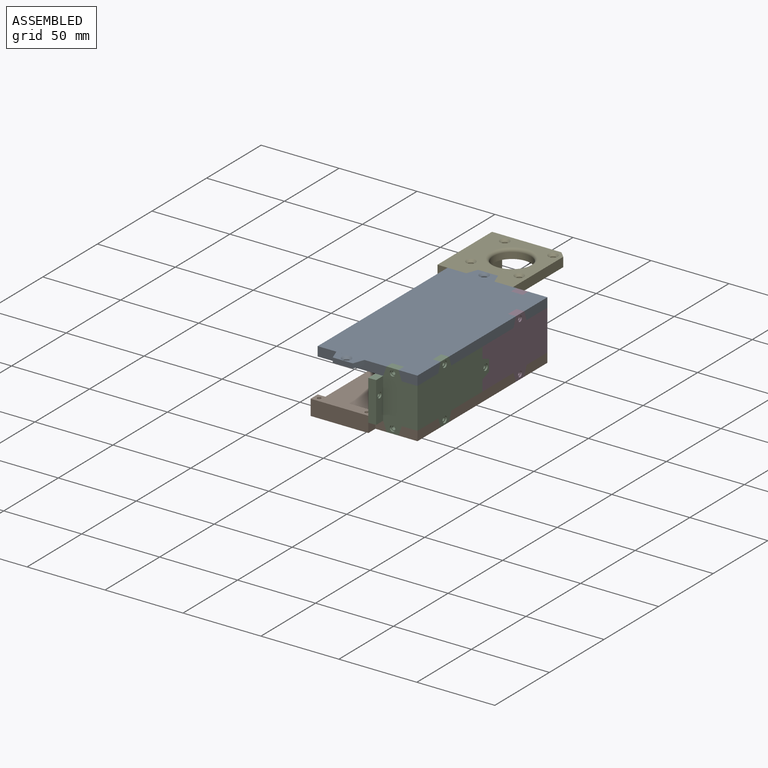
[diagram: assembled view]
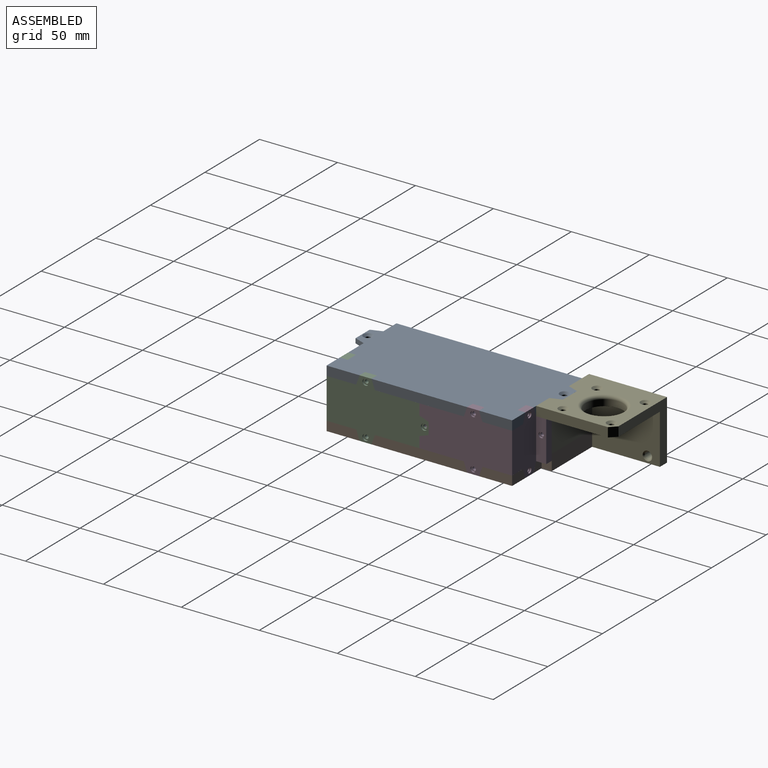
[diagram: assembled view, second angle]
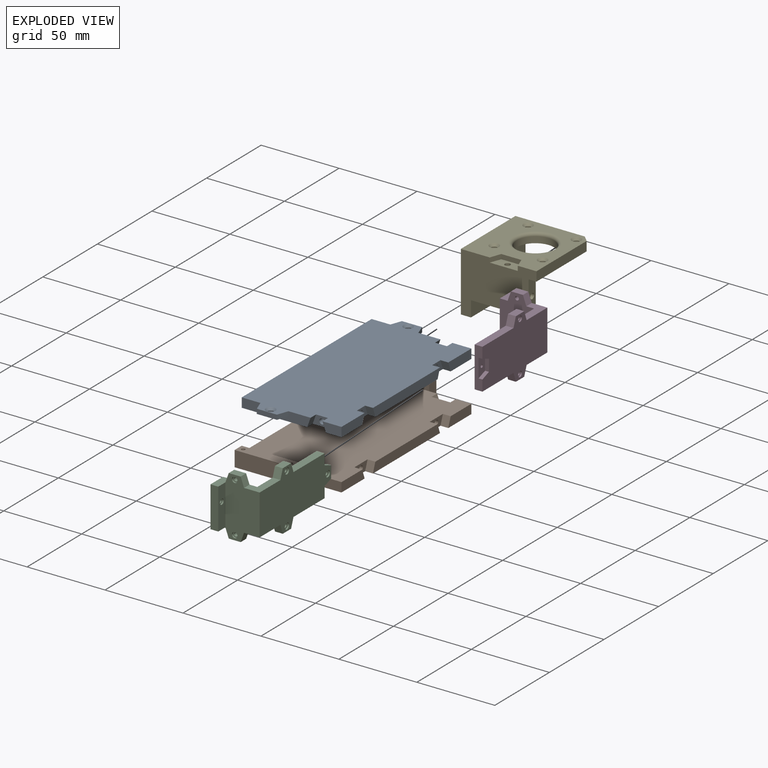
[diagram: exploded view]
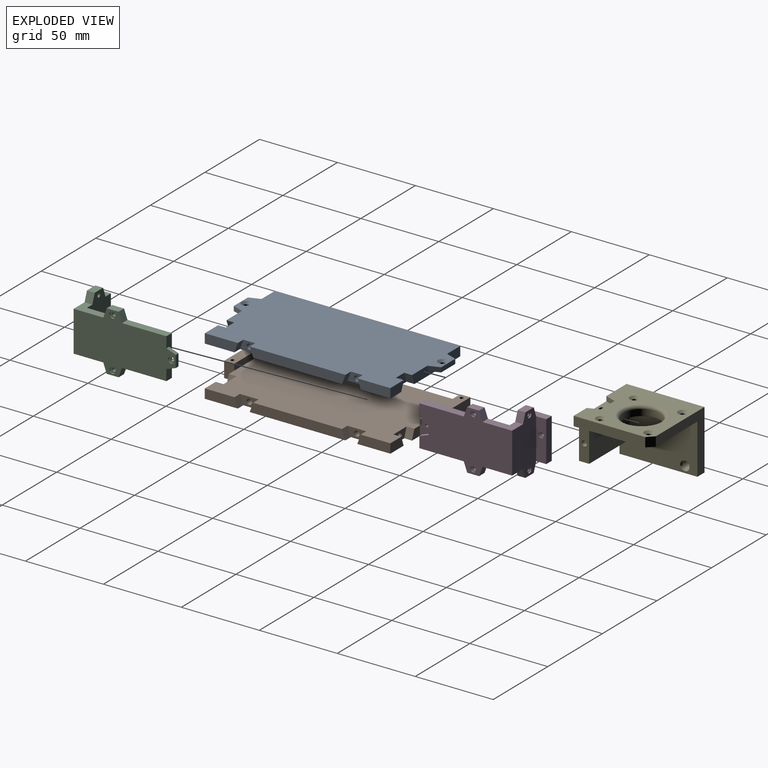
[diagram: exploded view, second angle]
FCSTD DOCUMENT  (FreeCAD 0.22R38334 (Git))
Label: E11A001
License: All rights reserved
LicenseURL: http://en.wikipedia.org/wiki/All_rights_reserved
objects: App::FeaturePython×8, App::Link×5, Assembly::JointGroup×1, Assembly::AssemblyObject×1
EXTERNAL_REF file=CH001.FCStd obj=Part004
EXTERNAL_REF file=MH004-1.FCStd obj=Part003
EXTERNAL_REF file=CH001.FCStd obj=Part__Mirroring
EXTERNAL_REF file=MH004-1.FCStd obj=Fusion
EXTERNAL_REF file=CH002.FCStd obj=Part004
EXTERNAL_REF file=CH002.FCStd obj=Fusion
EXTERNAL_REF file=CH003.FCStd obj=Part004
EXTERNAL_REF file=CH003.FCStd obj=Body
EXTERNAL_REF file=CH001.FCStd obj=Body017
EXTERNAL_REF file=CH004.FCStd obj=Part004
EXTERNAL_REF file=CH004.FCStd obj=Body

FEATURE [App::Link] CH001_
  LinkedObject = -> <external CH001.FCStd>#Part004
FEATURE [App::FeaturePython] GroundedJoint  # Assembly grounded joint (typed FeaturePython)
  ObjectToGround = -> CH001_
FEATURE [App::Link] MH004_1_  label="MH004-1_"
  LinkPlacement = pos=(-11,84.5012,-2e-16) rot=(0,0,1;0rad)
  LinkedObject = -> <external MH004-1.FCStd>#Part003
  Placement = pos=(-11,84.5012,-2e-16) rot=(0,0,1;0rad)
FEATURE [App::FeaturePython] Fixed  # Assembly joint (typed FeaturePython)
  Activated = true
  AngleMax = 0
  AngleMin = 0
  Detach1 = false
  Detach2 = false
  Distance = 0
  Distance2 = 0
  EnableAngleMax = false
  EnableAngleMin = false
  EnableLengthMax = false
  EnableLengthMin = false
  JointType = 0 (Fixed)
  LengthMax = 0
  LengthMin = 0
  Object1 = -> <external CH001.FCStd>#Part__Mirroring [Face4,Face4]
  Object2 = -> <external MH004-1.FCStd>#Fusion [Face20,Face20]
  Offset = (0,0,0)
  Part1 = -> CH001_
  Part2 = -> MH004_1_
  Placement1 = pos=(-11,62.79,3) rot=(1,0,0;3.14159rad)
  Placement2 = pos=(2e-16,-21.7111,3) rot=(0,0,1;0rad)
  Rotation = 0
FEATURE [App::Link] CH002_
  LinkPlacement = pos=(-1.2e-15,0.00115479,-26) rot=(1,0,0;3.14159rad)
  LinkedObject = -> <external CH002.FCStd>#Part004
  Placement = pos=(-1.2e-15,0.00115479,-26) rot=(1,0,0;3.14159rad)
FEATURE [App::FeaturePython] Fixed001  # Assembly joint (typed FeaturePython)
  Activated = true
  AngleMax = 0
  AngleMin = 0
  Detach1 = false
  Detach2 = false
  Distance = 0
  Distance2 = 0
  EnableAngleMax = false
  EnableAngleMin = false
  EnableLengthMax = false
  EnableLengthMin = false
  JointType = 0 (Fixed)
  LengthMax = 0
  LengthMin = 0
  Object1 = -> <external CH002.FCStd>#Fusion [Face27,Face27]
  Object2 = -> <external MH004-1.FCStd>#Fusion [Face32,Face32]
  Offset = (0,0,0)
  Part1 = -> CH002_
  Part2 = -> MH004_1_
  Placement1 = pos=(-13.5,-62.75,-4) rot=(0,0,1;0rad)
  Placement2 = pos=(-2.5,-21.75,-22) rot=(0,0,1;0rad)
  Rotation = 0
FEATURE [App::Link] CH003_
  LinkPlacement = pos=(27,7.1e-15,-13) rot=(0,0,1;0rad)
  LinkedObject = -> <external CH003.FCStd>#Part004
  Placement = pos=(27,7.1e-15,-13) rot=(0,0,1;0rad)
FEATURE [App::FeaturePython] Fixed002 .. Fixed005  x4 (patterned run collapsed; names and placements below)
  Activated = true
  AngleMax = 0
  AngleMin = 0
  Detach1 = false
  Detach2 = false
  Distance = 0
  Distance2 = 0
  EnableAngleMax = false
  EnableAngleMin = false
  EnableLengthMax = false
  EnableLengthMin = false
  JointType = 0 (Fixed)
  LengthMax = 0
  LengthMin = 0
  Object1 = -> <external CH003.FCStd>#Body [Edge11,Edge11]
  Object2 = -> <external CH001.FCStd>#Body017 [Edge32,Edge32]
  Offset = (0,0,0)
  Part1 = -> CH003_
  Part2 = -> CH001_
  Placement1 = pos=(-1.9e-14,-34.5,19) rot=(0.57735,0.57735,0.57735;4.18879rad)
  Placement2 = pos=(27,82.5,6) rot=(0.57735,0.57735,0.57735;4.18879rad)
  Rotation = 0
FEATURE [App::Link] CH004_
  LinkPlacement = pos=(27,-0.00597446,-13) rot=(1,0,0;3.14159rad)
  LinkedObject = -> <external CH004.FCStd>#Part004
  Placement = pos=(27,-0.00597446,-13) rot=(1,0,0;3.14159rad)
FEATURE [App::FeaturePython] Fixed006  # Assembly joint (typed FeaturePython)
  Activated = true
  AngleMax = 0
  AngleMin = 0
  Detach1 = false
  Detach2 = false
  Distance = 0
  Distance2 = 0
  EnableAngleMax = false
  EnableAngleMin = false
  EnableLengthMax = false
  EnableLengthMin = false
  JointType = 0 (Fixed)
  LengthMax = 0
  LengthMin = 0
  Object1 = -> <external CH004.FCStd>#Body [Face23,Face23]
  Object2 = -> <external CH003.FCStd>#Body [Face25,Face25]
  Offset = (0,0,0)
  Part1 = -> CH004_
  Part2 = -> CH003_
  Placement1 = pos=(2.5,-2.76499,1e-15) rot=(0.707107,0,0.707107;3.14159rad)
  Placement2 = pos=(2.5,2.75902,-4.4e-15) rot=(0,-1,0;4.71239rad)
  Rotation = 180
FEATURE [Assembly::JointGroup] Joints
  Group = -> [GroundedJoint,Fixed,Fixed001,Fixed002,Fixed003,Fixed004,Fixed005,Fixed006]
FEATURE [Assembly::AssemblyObject] Assembly
  Group = -> [Joints,CH001_,GroundedJoint,MH004_1_,Fixed,CH002_,Fixed001,CH003_,Fixed002,Fixed003,Fixed004,Fixed005,CH004_,Fixed006]
  Origin = -> Origin
  Type = Assembly

RESOLVED EXTERNAL PARTS (link-assembly join: the EXTERNAL_REF files above that resolve inside this repo's crawl, each included once):
---- part CH001.FCStd = doc fcstd_3d4a5a9f80d4 ----
FCSTD DOCUMENT  (FreeCAD 0.22R38334 (Git))
Label: CH001
License: All rights reserved
LicenseURL: http://en.wikipedia.org/wiki/All_rights_reserved
objects: Sketcher::SketchObject×9, PartDesign::Pocket×6, PartDesign::Body×4, PartDesign::SubShapeBinder×2, PartDesign::Pad×2, PartDesign::Hole×1, Part::Mirroring×1, PartDesign::FeatureBase×1, App::Part×1
note: 54 computed .brp shape members not serialized (recipe doc carries the construction recipe); baked Part::Feature solids carry a one-line shape summary decoded from their .brp

FEATURE [PartDesign::SubShapeBinder] Binder020
  BindCopyOnChange = 0
  BindMode = 0
  ClaimChildren = false
  Context = -> Part004 [Body017.Binder020.]
  Fuse = false
  MakeFace = true
  OffsetFill = false
  OffsetIntersection = false
  OffsetJoinType = 0
  OffsetOpenResult = false
  PartialLoad = false
  Relative = true
  Support = -> [Body016[Sketch033.]]
  _Version = 2
FEATURE [PartDesign::Pad] Pad012
  Direction = (0,0,1)
  Length = 6
  Length2 = 10
  Profile = -> Binder020
  Suppressed = false
  Type = 0
FEATURE [Sketcher::SketchObject] Sketch
  AttachmentSupport = -> [Pad012]
  ExternalGeometry = -> [Pad012]
  FullyConstrained = true
  MakeInternals = false
  MapMode = 5
  Placement = pos=(32,0,0) rot=(0.57735,0.57735,0.57735;2.0944rad)
  sketch-geometry (4):
    g0: LineSegment StartX=57.5 StartY=3 StartZ=0 EndX=176.5 EndY=3 EndZ=0
    g1: Circle CenterX=82.5 CenterY=3 CenterZ=0 NormalX=0 NormalY=0 NormalZ=1 AngleXU=0 Radius=1.75
    g2: Circle CenterX=151.5 CenterY=3 CenterZ=0 NormalX=0 NormalY=0 NormalZ=1 AngleXU=0 Radius=1.75
    g3: GeomPoint X=117 Y=3 Z=0
  constraints (8):
    c: Symmetric(g-5,g-5,g0)
    c: Symmetric(g-6,g-6,g0)
    c: PointOnObject(g1,g0)
    c: Diameter(g1) = 3.5
    c: Equal(g1,g2)
    c: Symmetric(g0,g0,g3)
    c: Symmetric(g1,g2,g3)
    c: DistanceX(g0,g1) = 25
FEATURE [PartDesign::Pocket] Pocket
  BaseFeature = -> Pad012
  Direction = (-1,0,0)
  Length = 9
  Length2 = 5
  Profile = -> Sketch
  ReferenceAxis = -> Sketch [N_Axis]
  Suppressed = false
  Type = 0
FEATURE [Sketcher::SketchObject] Sketch033
  AttachmentSupport = -> [XY_Plane021]
  FullyConstrained = true
  MakeInternals = false
  MapMode = 5
  expr: Constraints[10] = 215 - 48 * 2
  sketch-geometry (5):
    g0: LineSegment StartX=-32 StartY=-59.5 StartZ=0 EndX=32 EndY=-59.5 EndZ=0
    g1: LineSegment StartX=32 StartY=-59.5 StartZ=0 EndX=32 EndY=59.5 EndZ=0
    g2: LineSegment StartX=32 StartY=59.5 StartZ=0 EndX=-32 EndY=59.5 EndZ=0
    g3: LineSegment StartX=-32 StartY=59.5 StartZ=0 EndX=-32 EndY=-59.5 EndZ=0
    g4: GeomPoint X=0 Y=0 Z=0
  constraints (12):
    c: Coincident(g0,g1)
    c: Coincident(g1,g2)
    c: Coincident(g2,g3)
    c: Coincident(g3,g0)
    c: Horizontal(g0)
    c: Horizontal(g2)
    c: Vertical(g1)
    c: Vertical(g3)
    c: Symmetric(g2,g0,g4)
    c: Coincident(g4,g-1)
    c: DistanceY(g1,g1) = 119
    c: DistanceX(g2,g2) = 64
FEATURE [PartDesign::Body] Body016  label="Master004"
  AllowCompound = false
  Group = -> [Sketch033]
  Origin = -> Origin021
FEATURE [Sketcher::SketchObject] Sketch044
  AttachmentSupport = -> [Pocket]
  ExternalGeometry = -> [Pocket]
  FullyConstrained = true
  MakeInternals = false
  MapMode = 5
  Placement = pos=(32,0,0) rot=(0.57735,0.57735,0.57735;2.0944rad)
  sketch-geometry (10):
    g0: LineSegment StartX=76.5 StartY=0 StartZ=0 EndX=78.6838 EndY=6 EndZ=0
    g1: LineSegment StartX=78.6838 StartY=6 StartZ=0 EndX=86.3162 EndY=6 EndZ=0
    g2: LineSegment StartX=86.3162 StartY=6 StartZ=0 EndX=88.5 EndY=0 EndZ=0
    g3: LineSegment StartX=88.5 StartY=0 StartZ=0 EndX=76.5 EndY=0 EndZ=0
    g4: LineSegment StartX=147.684 StartY=6 StartZ=0 EndX=155.316 EndY=6 EndZ=0
    g5: LineSegment StartX=155.316 StartY=6 StartZ=0 EndX=157.5 EndY=0 EndZ=0
    g6: LineSegment StartX=157.5 StartY=0 StartZ=0 EndX=145.5 EndY=0 EndZ=0
    g7: LineSegment StartX=145.5 StartY=0 StartZ=0 EndX=147.684 EndY=6 EndZ=0
    g8: LineSegment StartX=82.5 StartY=6 StartZ=0 EndX=82.5 EndY=0 EndZ=0
    g9: LineSegment StartX=151.5 StartY=6 StartZ=0 EndX=151.5 EndY=2.336e-13 EndZ=0
  constraints (28):
    c: PointOnObject(g0,g-6)
    c: PointOnObject(g0,g-5)
    c: Coincident(g0,g1)
    c: PointOnObject(g1,g-5)
    c: Coincident(g1,g2)
    c: PointOnObject(g2,g-6)
    c: Coincident(g2,g3)
    c: Coincident(g3,g0)
    c: PointOnObject(g4,g-5)
    c: PointOnObject(g4,g-5)
    c: Coincident(g4,g5)
    c: PointOnObject(g5,g-6)
    c: Coincident(g5,g6)
    c: PointOnObject(g6,g-6)
    c: Coincident(g6,g7)
    c: Coincident(g7,g4)
    c: Symmetric(g1,g1,g8)
    c: Symmetric(g3,g3,g8)
    c: Symmetric(g4,g4,g9)
    c: PointOnObject(g-3,g8)
    c: Angle(g0,g1) = 1.91986
    c: Vertical(g8)
    c: DistanceX(g6,g6) = 12
    c: Angle(g7,g4) = 1.91986
    c: Symmetric(g6,g6,g9)
    c: Vertical(g9)
    c: PointOnObject(g-4,g9)
    c: DistanceX(g3,g3) = 12
FEATURE [PartDesign::Pocket] Pocket001
  BaseFeature = -> Pocket
  Direction = (-1,0,0)
  Length = 5
  Length2 = 5
  Profile = -> Sketch044
  ReferenceAxis = -> Sketch044 [N_Axis]
  Suppressed = false
  Type = 0
FEATURE [Sketcher::SketchObject] Sketch045
  AttachmentSupport = -> [Pocket001]
  ExternalGeometry = -> [Pocket001]
  FullyConstrained = true
  MakeInternals = false
  MapMode = 5
  Placement = pos=(0,57.5,0) rot=(1,0,0;1.5708rad)
  sketch-geometry (5):
    g0: LineSegment StartX=10 StartY=0 StartZ=0 EndX=12.1838 EndY=6 EndZ=0
    g1: LineSegment StartX=12.1838 StartY=6 StartZ=0 EndX=19.8162 EndY=6 EndZ=0
    g2: LineSegment StartX=19.8162 StartY=6 StartZ=0 EndX=22 EndY=0 EndZ=0
    g3: LineSegment StartX=22 StartY=0 StartZ=0 EndX=10 EndY=0 EndZ=0
    g4: LineSegment StartX=16 StartY=6 StartZ=0 EndX=16 EndY=0 EndZ=0
  constraints (14):
    c: PointOnObject(g0,g-3)
    c: PointOnObject(g0,g-4)
    c: Coincident(g0,g1)
    c: PointOnObject(g1,g-4)
    c: Coincident(g1,g2)
    c: PointOnObject(g2,g-3)
    c: Coincident(g2,g3)
    c: Coincident(g3,g0)
    c: Vertical(g4)
    c: Symmetric(g1,g1,g4)
    c: Symmetric(g3,g3,g4)
    c: Angle(g0,g1) = 1.91986
    c: DistanceX(g3,g3) = 12
    c: DistanceX(g2,g-5) = 10
FEATURE [PartDesign::Pocket] Pocket002
  BaseFeature = -> Pocket001
  Direction = (0,1,-2e-16)
  Length = 5
  Length2 = 5
  Profile = -> Sketch045
  ReferenceAxis = -> Sketch045 [N_Axis]
  Suppressed = false
  Type = 0
FEATURE [Sketcher::SketchObject] Sketch046
  AttachmentSupport = -> [Pocket002]
  ExternalGeometry = -> [Pocket002]
  FullyConstrained = true
  MakeInternals = false
  MapMode = 5
  Placement = pos=(0,62.5,0) rot=(1,0,0;1.5708rad)
  sketch-geometry (2):
    g0: LineSegment StartX=16 StartY=6 StartZ=0 EndX=16 EndY=0 EndZ=0
    g1: Circle CenterX=16 CenterY=3 CenterZ=0 NormalX=0 NormalY=0 NormalZ=1 AngleXU=0 Radius=1.75
  constraints (4):
    c: Symmetric(g-3,g-3,g0)
    c: Symmetric(g-4,g-4,g0)
    c: Symmetric(g0,g0,g1)
    c: Diameter(g1) = 3.5
FEATURE [PartDesign::Pocket] Pocket003
  BaseFeature = -> Pocket002
  Direction = (0,1,-2e-16)
  Length = 4
  Length2 = 5
  Profile = -> Sketch046
  ReferenceAxis = -> Sketch046 [N_Axis]
  Suppressed = false
  Type = 0
FEATURE [Sketcher::SketchObject] Sketch047
  AttachmentSupport = -> [Pocket003]
  ExternalGeometry = -> [Pocket003]
  FullyConstrained = true
  MakeInternals = false
  MapMode = 5
  Placement = pos=(0,176.5,0) rot=(0,0.707107,0.707107;3.14159rad)
  sketch-geometry (5):
    g0: LineSegment StartX=-22 StartY=-1.9e-15 StartZ=0 EndX=-19.8162 EndY=6 EndZ=0
    g1: LineSegment StartX=-19.8162 StartY=6 StartZ=0 EndX=-12.1838 EndY=6 EndZ=0
    g2: LineSegment StartX=-12.1838 StartY=6 StartZ=0 EndX=-10 EndY=-9e-16 EndZ=0
    g3: LineSegment StartX=-10 StartY=-9e-16 StartZ=0 EndX=-22 EndY=-1.9e-15 EndZ=0
    g4: LineSegment StartX=-16 StartY=6 StartZ=0 EndX=-16 EndY=-1.8e-15 EndZ=0
  constraints (14):
    c: PointOnObject(g0,g-4)
    c: PointOnObject(g0,g-3)
    c: Coincident(g0,g1)
    c: PointOnObject(g1,g-3)
    c: Coincident(g1,g2)
    c: PointOnObject(g2,g-4)
    c: Coincident(g2,g3)
    c: Coincident(g3,g0)
    c: Vertical(g4)
    c: Symmetric(g1,g1,g4)
    c: Symmetric(g3,g3,g4)
    c: DistanceX(g3,g3) = 12
    c: Angle(g0,g1) = 1.91986
    c: DistanceX(g-4,g0) = 10
FEATURE [PartDesign::Pocket] Pocket004
  BaseFeature = -> Pocket003
  Direction = (0,-1,2e-16)
  Length = 5
  Length2 = 5
  Profile = -> Sketch047
  ReferenceAxis = -> Sketch047 [N_Axis]
  Suppressed = false
  Type = 0
FEATURE [PartDesign::SubShapeBinder] Binder
  BindCopyOnChange = 0
  BindMode = 0
  ClaimChildren = false
  Context = -> Part004 [Body.Binder.]
  Fuse = false
  MakeFace = true
  OffsetFill = false
  OffsetIntersection = false
  OffsetJoinType = 0
  OffsetOpenResult = false
  PartialLoad = false
  Placement = pos=(0,0,3) rot=(0,0,1;0rad)
  Relative = true
  Support = -> [Body016[Sketch033.]]
  _Version = 2
FEATURE [PartDesign::Body] Body  label="CH002"
  AllowCompound = false
  Origin = -> Origin
FEATURE [Sketcher::SketchObject] Sketch050
  AttachmentSupport = -> [Binder]
  ExternalGeometry = -> [Binder]
  FullyConstrained = true
  MakeInternals = false
  MapMode = 5
  Placement = pos=(0,0,3) rot=(0,0,1;0rad)
  sketch-geometry (5):
    g0: LineSegment StartX=-20 StartY=-59.5 StartZ=0 EndX=-17.4522 EndY=-66.5 EndZ=0
    g1: LineSegment StartX=-17.4522 StartY=-66.5 StartZ=0 EndX=-4.54779 EndY=-66.5 EndZ=0
    g2: LineSegment StartX=-4.54779 StartY=-66.5 StartZ=0 EndX=-2 EndY=-59.5 EndZ=0
    g3: LineSegment StartX=-2 StartY=-59.5 StartZ=0 EndX=-20 EndY=-59.5 EndZ=0
    g4: LineSegment StartX=-11 StartY=-59.5 StartZ=0 EndX=-11 EndY=-66.5 EndZ=0
  constraints (14):
    c: PointOnObject(g0,g-3)
    c: Coincident(g0,g1)
    c: Horizontal(g1)
    c: Coincident(g1,g2)
    c: PointOnObject(g2,g-3)
    c: Coincident(g2,g3)
    c: Coincident(g3,g0)
    c: Symmetric(g3,g3,g4)
    c: Vertical(g4)
    c: Symmetric(g1,g1,g4)
    c: DistanceX(g3,g3) = 18
    c: Angle(g1,g0) = 1.91986
    c: DistanceY(g1,g2) = 7
    c: DistanceX(g-3,g4) = 21
FEATURE [PartDesign::Pad] Pad
  Direction = (0,0,1)
  Length = 3
  Length2 = 10
  Placement = pos=(0,0,3) rot=(0,0,1;0rad)
  Profile = -> Sketch050
  ReferenceAxis = -> Sketch050 [N_Axis]
  Suppressed = false
  Type = 0
FEATURE [Sketcher::SketchObject] Sketch051
  AttachmentSupport = -> [Pad]
  ExternalGeometry = -> [Pad]
  FullyConstrained = true
  MakeInternals = false
  MapMode = 5
  Placement = pos=(0,0,6) rot=(0,0,1;0rad)
  sketch-geometry (2):
    g0: LineSegment StartX=-11 StartY=-59.5 StartZ=0 EndX=-11 EndY=-66.5 EndZ=0
    g1: Circle CenterX=-11 CenterY=-63 CenterZ=0 NormalX=0 NormalY=0 NormalZ=1 AngleXU=0 Radius=1.75
  constraints (5):
    c: PointOnObject(g0,g-4)
    c: Vertical(g0)
    c: Symmetric(g-3,g-3,g0)
    c: Symmetric(g0,g0,g1)
    c: Diameter(g1) = 3.5
FEATURE [PartDesign::Hole] Hole
  CustomThreadClearance = 0
  Depth = 25
  DepthType = 0
  Diameter = 3.4
  DrillForDepth = false
  DrillPoint = 1
  DrillPointAngle = 118
  HoleCutCountersinkAngle = 90
  HoleCutCustomValues = false
  HoleCutDepth = 0
  HoleCutDiameter = 6.1
  HoleCutType = 2
  ModelThread = false
  Placement = pos=(0,0,3) rot=(0,0,1;0rad)
  Profile = -> Sketch051
  Suppressed = false
  Tapered = false
  TaperedAngle = 90
  ThreadClass = 0
  ThreadDepth = 25
  ThreadDepthType = 0
  ThreadDirection = 0
  ThreadFit = 0
  ThreadSize = 9
  ThreadType = 1
  Threaded = false
  UseCustomThreadClearance = false
FEATURE [Part::Mirroring] Part__Mirroring  label="Hole (Mirror #1)"
  Base = (0,0,0)
  Normal = (0,1,0)
  Source = -> Hole
FEATURE [PartDesign::FeatureBase] BaseFeature
  BaseFeature = -> Binder
  Suppressed = false
FEATURE [PartDesign::Body] HoleBody
  AllowCompound = false
  BaseFeature = -> Binder
  Group = -> [BaseFeature]
  Origin = -> Origin023
  Tip = -> BaseFeature
FEATURE [Sketcher::SketchObject] Sketch053
  AttachmentSupport = -> [Pocket004]
  ExternalGeometry = -> [Pocket004]
  FullyConstrained = true
  MakeInternals = false
  MapMode = 5
  Placement = pos=(0,171.5,0) rot=(0,0.707107,0.707107;3.14159rad)
  sketch-geometry (2):
    g0: LineSegment StartX=-16 StartY=6 StartZ=0 EndX=-16 EndY=0 EndZ=0
    g1: Circle CenterX=-16 CenterY=3 CenterZ=0 NormalX=0 NormalY=0 NormalZ=1 AngleXU=0 Radius=1.75
  constraints (4):
    c: Symmetric(g-3,g-3,g0)
    c: Symmetric(g-4,g-4,g0)
    c: Symmetric(g0,g0,g1)
    c: Diameter(g1) = 3.5
FEATURE [PartDesign::Pocket] Pocket005
  BaseFeature = -> Pocket004
  Direction = (0,-1,2e-16)
  Length = 4
  Length2 = 5
  Profile = -> Sketch053
  ReferenceAxis = -> Sketch053 [N_Axis]
  Suppressed = false
  Type = 0
FEATURE [PartDesign::Body] Body017  label="CH001"
  AllowCompound = false
  Group = -> [Binder020,Pad012,Sketch,Pocket,Sketch044,Pocket001,Sketch045,Pocket002,Sketch046,Pocket003,Sketch047,Pocket004,Sketch053,Pocket005]
  Origin = -> Origin022
  Placement = pos=(0,-117,0) rot=(0,0,1;0rad)
  Tip = -> Pocket005
FEATURE [App::Part] Part004  label="CH001_"
  Group = -> [Body016,Body017,Body,Sketch050,Pad,Binder,Hole,Sketch051,Part__Mirroring,HoleBody]
  Origin = -> Origin020
---- part CH002.FCStd = doc fcstd_51946651641e ----
FCSTD DOCUMENT  (FreeCAD 0.22R38334 (Git))
Label: CH002
License: All rights reserved
LicenseURL: http://en.wikipedia.org/wiki/All_rights_reserved
objects: Sketcher::SketchObject×11, PartDesign::Pocket×7, PartDesign::Body×3, PartDesign::SubShapeBinder×2, PartDesign::Pad×2, PartDesign::Hole×1, Part::MultiFuse×1, App::Part×1
note: 58 computed .brp shape members not serialized (recipe doc carries the construction recipe); baked Part::Feature solids carry a one-line shape summary decoded from their .brp

FEATURE [PartDesign::SubShapeBinder] Binder020
  BindCopyOnChange = 0
  BindMode = 0
  ClaimChildren = false
  Context = -> Part004 [Body017.Binder020.]
  Fuse = false
  MakeFace = true
  OffsetFill = false
  OffsetIntersection = false
  OffsetJoinType = 0
  OffsetOpenResult = false
  PartialLoad = false
  Relative = true
  Support = -> [Body016[Sketch033.]]
  _Version = 2
FEATURE [PartDesign::Pad] Pad012
  Direction = (0,0,1)
  Length = 6
  Length2 = 10
  Profile = -> Binder020
  Suppressed = false
  Type = 0
FEATURE [Sketcher::SketchObject] Sketch
  AttachmentSupport = -> [Pad012]
  ExternalGeometry = -> [Pad012]
  FullyConstrained = true
  MakeInternals = false
  MapMode = 5
  Placement = pos=(32,0,0) rot=(0.57735,0.57735,0.57735;2.0944rad)
  sketch-geometry (4):
    g0: LineSegment StartX=-59.5 StartY=3 StartZ=0 EndX=59.5 EndY=3 EndZ=0
    g1: Circle CenterX=-34.5 CenterY=3 CenterZ=0 NormalX=0 NormalY=0 NormalZ=1 AngleXU=0 Radius=1.75
    g2: Circle CenterX=34.5 CenterY=3 CenterZ=0 NormalX=0 NormalY=0 NormalZ=1 AngleXU=0 Radius=1.75
    g3: GeomPoint X=2.2e-15 Y=3 Z=0
  constraints (8):
    c: Symmetric(g-5,g-5,g0)
    c: Symmetric(g-6,g-6,g0)
    c: PointOnObject(g1,g0)
    c: Diameter(g1) = 3.5
    c: Equal(g1,g2)
    c: Symmetric(g0,g0,g3)
    c: Symmetric(g1,g2,g3)
    c: DistanceX(g0,g1) = 25
FEATURE [PartDesign::Pocket] Pocket
  BaseFeature = -> Pad012
  Direction = (-1,0,0)
  Length = 9
  Length2 = 5
  Profile = -> Sketch
  ReferenceAxis = -> Sketch [N_Axis]
  Suppressed = false
  Type = 0
FEATURE [Sketcher::SketchObject] Sketch033
  AttachmentSupport = -> [XY_Plane021]
  FullyConstrained = true
  MakeInternals = false
  MapMode = 5
  expr: Constraints[10] = 215 - 48 * 2
  sketch-geometry (5):
    g0: LineSegment StartX=-32 StartY=-59.5 StartZ=0 EndX=32 EndY=-59.5 EndZ=0
    g1: LineSegment StartX=32 StartY=-59.5 StartZ=0 EndX=32 EndY=59.5 EndZ=0
    g2: LineSegment StartX=32 StartY=59.5 StartZ=0 EndX=-32 EndY=59.5 EndZ=0
    g3: LineSegment StartX=-32 StartY=59.5 StartZ=0 EndX=-32 EndY=-59.5 EndZ=0
    g4: GeomPoint X=0 Y=0 Z=0
  constraints (12):
    c: Coincident(g0,g1)
    c: Coincident(g1,g2)
    c: Coincident(g2,g3)
    c: Coincident(g3,g0)
    c: Horizontal(g0)
    c: Horizontal(g2)
    c: Vertical(g1)
    c: Vertical(g3)
    c: Symmetric(g2,g0,g4)
    c: Coincident(g4,g-1)
    c: DistanceY(g1,g1) = 119
    c: DistanceX(g2,g2) = 64
FEATURE [PartDesign::Body] Body016  label="Master004"
  AllowCompound = false
  Group = -> [Sketch033]
  Origin = -> Origin021
FEATURE [Sketcher::SketchObject] Sketch044
  AttachmentSupport = -> [Pocket]
  ExternalGeometry = -> [Pocket]
  FullyConstrained = true
  MakeInternals = false
  MapMode = 5
  Placement = pos=(32,0,0) rot=(0.57735,0.57735,0.57735;2.0944rad)
  sketch-geometry (10):
    g0: LineSegment StartX=-40.5 StartY=0 StartZ=0 EndX=-38.3162 EndY=6 EndZ=0
    g1: LineSegment StartX=-38.3162 StartY=6 StartZ=0 EndX=-30.6838 EndY=6 EndZ=0
    g2: LineSegment StartX=-30.6838 StartY=6 StartZ=0 EndX=-28.5 EndY=0 EndZ=0
    g3: LineSegment StartX=-28.5 StartY=0 StartZ=0 EndX=-40.5 EndY=0 EndZ=0
    g4: LineSegment StartX=30.6838 StartY=6 StartZ=0 EndX=38.3162 EndY=6 EndZ=0
    g5: LineSegment StartX=38.3162 StartY=6 StartZ=0 EndX=40.5 EndY=0 EndZ=0
    g6: LineSegment StartX=40.5 StartY=0 StartZ=0 EndX=28.5 EndY=0 EndZ=0
    g7: LineSegment StartX=28.5 StartY=0 StartZ=0 EndX=30.6838 EndY=6 EndZ=0
    g8: LineSegment StartX=-34.5 StartY=6 StartZ=0 EndX=-34.5 EndY=0 EndZ=0
    g9: LineSegment StartX=34.5 StartY=6 StartZ=0 EndX=34.5 EndY=0 EndZ=0
  constraints (28):
    c: PointOnObject(g0,g-6)
    c: PointOnObject(g0,g-5)
    c: Coincident(g0,g1)
    c: PointOnObject(g1,g-5)
    c: Coincident(g1,g2)
    c: PointOnObject(g2,g-6)
    c: Coincident(g2,g3)
    c: Coincident(g3,g0)
    c: PointOnObject(g4,g-5)
    c: PointOnObject(g4,g-5)
    c: Coincident(g4,g5)
    c: PointOnObject(g5,g-6)
    c: Coincident(g5,g6)
    c: PointOnObject(g6,g-6)
    c: Coincident(g6,g7)
    c: Coincident(g7,g4)
    c: Symmetric(g1,g1,g8)
    c: Symmetric(g3,g3,g8)
    c: Symmetric(g4,g4,g9)
    c: PointOnObject(g-3,g8)
    c: Angle(g0,g1) = 1.91986
    c: Vertical(g8)
    c: DistanceX(g6,g6) = 12
    c: Angle(g7,g4) = 1.91986
    c: Symmetric(g6,g6,g9)
    c: Vertical(g9)
    c: PointOnObject(g-4,g9)
    c: DistanceX(g3,g3) = 12
FEATURE [PartDesign::Pocket] Pocket001
  BaseFeature = -> Pocket
  Direction = (-1,0,0)
  Length = 5
  Length2 = 5
  Profile = -> Sketch044
  ReferenceAxis = -> Sketch044 [N_Axis]
  Suppressed = false
  Type = 0
FEATURE [Sketcher::SketchObject] Sketch045
  AttachmentSupport = -> [Pocket001]
  ExternalGeometry = -> [Pocket001]
  FullyConstrained = true
  MakeInternals = false
  MapMode = 5
  Placement = pos=(0,-59.5,0) rot=(1,0,0;1.5708rad)
  sketch-geometry (5):
    g0: LineSegment StartX=10 StartY=0 StartZ=0 EndX=12.1838 EndY=6 EndZ=0
    g1: LineSegment StartX=12.1838 StartY=6 StartZ=0 EndX=19.8162 EndY=6 EndZ=0
    g2: LineSegment StartX=19.8162 StartY=6 StartZ=0 EndX=22 EndY=0 EndZ=0
    g3: LineSegment StartX=22 StartY=0 StartZ=0 EndX=10 EndY=0 EndZ=0
    g4: LineSegment StartX=16 StartY=6 StartZ=0 EndX=16 EndY=0 EndZ=0
  constraints (14):
    c: PointOnObject(g0,g-3)
    c: PointOnObject(g0,g-4)
    c: Coincident(g0,g1)
    c: PointOnObject(g1,g-4)
    c: Coincident(g1,g2)
    c: PointOnObject(g2,g-3)
    c: Coincident(g2,g3)
    c: Coincident(g3,g0)
    c: Vertical(g4)
    c: Symmetric(g1,g1,g4)
    c: Symmetric(g3,g3,g4)
    c: Angle(g0,g1) = 1.91986
    c: DistanceX(g3,g3) = 12
    c: DistanceX(g2,g-5) = 10
FEATURE [PartDesign::Pocket] Pocket002
  BaseFeature = -> Pocket001
  Direction = (0,1,-2e-16)
  Length = 5
  Length2 = 5
  Profile = -> Sketch045
  ReferenceAxis = -> Sketch045 [N_Axis]
  Suppressed = false
  Type = 0
FEATURE [Sketcher::SketchObject] Sketch046
  AttachmentSupport = -> [Pocket002]
  ExternalGeometry = -> [Pocket002]
  FullyConstrained = true
  MakeInternals = false
  MapMode = 5
  Placement = pos=(0,-54.5,0) rot=(1,0,0;1.5708rad)
  sketch-geometry (2):
    g0: LineSegment StartX=16 StartY=6 StartZ=0 EndX=16 EndY=0 EndZ=0
    g1: Circle CenterX=16 CenterY=3 CenterZ=0 NormalX=0 NormalY=0 NormalZ=1 AngleXU=0 Radius=1.75
  constraints (4):
    c: Symmetric(g-3,g-3,g0)
    c: Symmetric(g-4,g-4,g0)
    c: Symmetric(g0,g0,g1)
    c: Diameter(g1) = 3.5
FEATURE [PartDesign::Pocket] Pocket003
  BaseFeature = -> Pocket002
  Direction = (0,1,-2e-16)
  Length = 4
  Length2 = 5
  Profile = -> Sketch046
  ReferenceAxis = -> Sketch046 [N_Axis]
  Suppressed = false
  Type = 0
FEATURE [Sketcher::SketchObject] Sketch047
  AttachmentSupport = -> [Pocket003]
  ExternalGeometry = -> [Pocket003]
  FullyConstrained = true
  MakeInternals = false
  MapMode = 5
  Placement = pos=(0,59.5,0) rot=(0,0.707107,0.707107;3.14159rad)
  sketch-geometry (5):
    g0: LineSegment StartX=-22 StartY=0 StartZ=0 EndX=-19.8162 EndY=6 EndZ=0
    g1: LineSegment StartX=-19.8162 StartY=6 StartZ=0 EndX=-12.1838 EndY=6 EndZ=0
    g2: LineSegment StartX=-12.1838 StartY=6 StartZ=0 EndX=-10 EndY=0 EndZ=0
    g3: LineSegment StartX=-10 StartY=0 StartZ=0 EndX=-22 EndY=0 EndZ=0
    g4: LineSegment StartX=-16 StartY=6 StartZ=0 EndX=-16 EndY=0 EndZ=0
  constraints (14):
    c: PointOnObject(g0,g-4)
    c: PointOnObject(g0,g-3)
    c: Coincident(g0,g1)
    c: PointOnObject(g1,g-3)
    c: Coincident(g1,g2)
    c: PointOnObject(g2,g-4)
    c: Coincident(g2,g3)
    c: Coincident(g3,g0)
    c: Vertical(g4)
    c: Symmetric(g1,g1,g4)
    c: Symmetric(g3,g3,g4)
    c: DistanceX(g3,g3) = 12
    c: Angle(g0,g1) = 1.91986
    c: DistanceX(g-4,g0) = 10
FEATURE [PartDesign::Pocket] Pocket004
  BaseFeature = -> Pocket003
  Direction = (0,-1,2e-16)
  Length = 5
  Length2 = 5
  Profile = -> Sketch047
  ReferenceAxis = -> Sketch047 [N_Axis]
  Suppressed = false
  Type = 0
FEATURE [Sketcher::SketchObject] Sketch048
  AttachmentSupport = -> [Pocket004]
  ExternalGeometry = -> [Pocket004]
  FullyConstrained = true
  MakeInternals = false
  MapMode = 5
  Placement = pos=(0,54.5,0) rot=(0,0.707107,0.707107;3.14159rad)
  sketch-geometry (2):
    g0: LineSegment StartX=-16 StartY=6 StartZ=0 EndX=-16 EndY=9e-16 EndZ=0
    g1: Circle CenterX=-16 CenterY=3 CenterZ=0 NormalX=0 NormalY=0 NormalZ=1 AngleXU=0 Radius=1.75
  constraints (4):
    c: Symmetric(g-3,g-3,g0)
    c: Symmetric(g-4,g-4,g0)
    c: Symmetric(g0,g0,g1)
    c: Diameter(g1) = 3.5
FEATURE [PartDesign::Pocket] Pocket005
  BaseFeature = -> Pocket004
  Direction = (0,-1,2e-16)
  Length = 4
  Length2 = 5
  Profile = -> Sketch048
  ReferenceAxis = -> Sketch048 [N_Axis]
  Suppressed = false
  Type = 0
FEATURE [Sketcher::SketchObject] Sketch049
  AttachmentSupport = -> [Pocket]
  FullyConstrained = true
  MakeInternals = false
  MapMode = 5
  Placement = pos=(0,0,6) rot=(0,0,1;0rad)
FEATURE [PartDesign::Body] Body017  label="CH001"
  AllowCompound = false
  Group = -> [Binder020,Pad012,Sketch,Pocket,Sketch044,Pocket001,Sketch045,Pocket002,Sketch046,Pocket003,Sketch047,Pocket004,Sketch048,Pocket005,Sketch049]
  Origin = -> Origin022
  Tip = -> Pocket005
FEATURE [PartDesign::SubShapeBinder] Binder
  BindCopyOnChange = 0
  BindMode = 0
  ClaimChildren = false
  Context = -> Part004 [Body.Binder.]
  Fuse = false
  MakeFace = true
  OffsetFill = false
  OffsetIntersection = false
  OffsetJoinType = 0
  OffsetOpenResult = false
  PartialLoad = false
  Relative = true
  Support = -> [Body016[Sketch033.]]
  _Version = 2
FEATURE [Sketcher::SketchObject] Sketch050
  AttachmentSupport = -> [Binder]
  ExternalGeometry = -> [Binder]
  FullyConstrained = true
  MakeInternals = false
  MapMode = 5
  sketch-geometry (4):
    g0: LineSegment StartX=-32 StartY=66 StartZ=0 EndX=-32 EndY=-66 EndZ=0
    g1: LineSegment StartX=-32 StartY=-66 StartZ=0 EndX=5 EndY=-66 EndZ=0
    g2: LineSegment StartX=5 StartY=-66 StartZ=0 EndX=5 EndY=66 EndZ=0
    g3: LineSegment StartX=5 StartY=66 StartZ=0 EndX=-32 EndY=66 EndZ=0
  constraints (12):
    c: Coincident(g0,g1)
    c: Coincident(g1,g2)
    c: Coincident(g2,g3)
    c: Coincident(g3,g0)
    c: Vertical(g0)
    c: Vertical(g2)
    c: Horizontal(g1)
    c: Horizontal(g3)
    c: Vertical(g-4,g0)
    c: DistanceY(g0,g-5) = 6.5
    c: DistanceY(g-4,g0) = 6.5
    c: DistanceX(g3,g3) = 37
FEATURE [PartDesign::Pad] Pad
  Direction = (0,0,1)
  Length = 6
  Length2 = 4
  Profile = -> Sketch050
  ReferenceAxis = -> Sketch050 [N_Axis]
  Suppressed = false
  Type = 4
FEATURE [Sketcher::SketchObject] Sketch051
  AttachmentSupport = -> [Pad]
  ExternalGeometry = -> [Binder,Pad]
  FullyConstrained = true
  MakeInternals = false
  MapMode = 5
  Placement = pos=(0,0,-4) rot=(1,0,0;3.14159rad)
  sketch-geometry (4):
    g0: LineSegment StartX=-32 StartY=59.5 StartZ=0 EndX=-32 EndY=-59.5 EndZ=0
    g1: LineSegment StartX=-32 StartY=-59.5 StartZ=0 EndX=5 EndY=-59.5 EndZ=0
    g2: LineSegment StartX=5 StartY=-59.5 StartZ=0 EndX=5 EndY=59.5 EndZ=0
    g3: LineSegment StartX=5 StartY=59.5 StartZ=0 EndX=-32 EndY=59.5 EndZ=0
  constraints (11):
    c: Coincident(g0,g1)
    c: Coincident(g1,g2)
    c: Coincident(g2,g3)
    c: Coincident(g3,g0)
    c: Vertical(g0)
    c: Vertical(g2)
    c: Horizontal(g1)
    c: Horizontal(g3)
    c: Coincident(g0,g-4)
    c: PointOnObject(g1,g-3)
    c: Vertical(g1,g-5)
FEATURE [PartDesign::Pocket] Pocket006
  BaseFeature = -> Pad
  Direction = (0,0,1)
  Length = 4
  Length2 = 5
  Profile = -> Sketch051
  ReferenceAxis = -> Sketch051 [N_Axis]
  Suppressed = false
  Type = 0
FEATURE [Sketcher::SketchObject] Sketch052
  AttachmentSupport = -> [Pad]
  ExternalGeometry = -> [Binder,Pad]
  FullyConstrained = true
  MakeInternals = false
  MapMode = 5
  Placement = pos=(0,0,6) rot=(0,0,1;0rad)
  sketch-geometry (8):
    g0: LineSegment StartX=-13.5 StartY=66 StartZ=0 EndX=-13.5 EndY=59.5 EndZ=0
    g1: Circle CenterX=-28.75 CenterY=62.75 CenterZ=0 NormalX=0 NormalY=0 NormalZ=1 AngleXU=0 Radius=1.75
    g2: Circle CenterX=1.75 CenterY=62.75 CenterZ=0 NormalX=0 NormalY=0 NormalZ=1 AngleXU=0 Radius=1.75
    g3: GeomPoint X=-13.5 Y=62.75 Z=0
    g4: LineSegment StartX=-13.5 StartY=-59.5 StartZ=0 EndX=-13.5 EndY=-66 EndZ=0
    g5: Circle CenterX=-28.75 CenterY=-62.75 CenterZ=0 NormalX=0 NormalY=0 NormalZ=1 AngleXU=0 Radius=1.75
    g6: Circle CenterX=1.75 CenterY=-62.75 CenterZ=0 NormalX=0 NormalY=0 NormalZ=1 AngleXU=0 Radius=1.75
    g7: GeomPoint X=-13.5 Y=-62.75 Z=0
  constraints (18):
    c: Symmetric(g-6,g-6,g0)
    c: PointOnObject(g0,g-3)
    c: Vertical(g0)
    c: Symmetric(g0,g0,g3)
    c: Symmetric(g1,g2,g3)
    c: Equal(g1,g2)
    c: Diameter(g1) = 3.5
    c: DistanceX(g2,g-7) = 3.25
    c: Horizontal(g2,g3)
    c: PointOnObject(g4,g-4)
    c: Symmetric(g-5,g-5,g4)
    c: Vertical(g4)
    c: Symmetric(g4,g4,g7)
    c: Symmetric(g5,g6,g7)
    c: Equal(g2,g5)
    c: Equal(g5,g6)
    c: Vertical(g1,g5)
    c: Horizontal(g5,g7)
FEATURE [PartDesign::Hole] Hole
  BaseFeature = -> Pocket006
  CustomThreadClearance = 0
  Depth = 25
  DepthType = 0
  Diameter = 2.4
  DrillForDepth = false
  DrillPoint = 1
  DrillPointAngle = 118
  HoleCutCountersinkAngle = 90
  HoleCutCustomValues = false
  HoleCutDepth = 2.1
  HoleCutDiameter = 3.5
  HoleCutType = 1
  ModelThread = false
  Profile = -> Sketch052
  Suppressed = false
  Tapered = false
  TaperedAngle = 90
  ThreadClass = 0
  ThreadDepth = 25
  ThreadDepthType = 0
  ThreadDirection = 0
  ThreadFit = 0
  ThreadSize = 6
  ThreadType = 1
  Threaded = false
  UseCustomThreadClearance = false
  expr: HoleCutDiameter = 3.5
FEATURE [PartDesign::Body] Body  label="CH002"
  AllowCompound = false
  Group = -> [Binder,Sketch050,Pad,Sketch051,Pocket006,Sketch052,Hole]
  Origin = -> Origin
  Tip = -> Hole
FEATURE [Part::MultiFuse] Fusion
  Shapes = -> [Body017,Body]
FEATURE [App::Part] Part004  label="CH002_"
  Group = -> [Body016,Body017,Body,Fusion]
  Origin = -> Origin020
---- part CH003.FCStd = doc fcstd_e1cf478e024a ----
FCSTD DOCUMENT  (FreeCAD 0.22R38334 (Git))
Label: CH003
License: All rights reserved
LicenseURL: http://en.wikipedia.org/wiki/All_rights_reserved
objects: Sketcher::SketchObject×9, PartDesign::Pad×4, PartDesign::Body×3, PartDesign::Hole×3, PartDesign::SubShapeBinder×2, PartDesign::Pocket×1, App::Part×1
note: 47 computed .brp shape members not serialized (recipe doc carries the construction recipe); baked Part::Feature solids carry a one-line shape summary decoded from their .brp

FEATURE [Sketcher::SketchObject] Sketch033
  AttachmentSupport = -> [XY_Plane021]
  FullyConstrained = true
  MakeInternals = false
  MapMode = 5
  expr: Constraints[10] = 215 - 48 * 2
  sketch-geometry (5):
    g0: LineSegment StartX=-32 StartY=-59.5 StartZ=0 EndX=32 EndY=-59.5 EndZ=0
    g1: LineSegment StartX=32 StartY=-59.5 StartZ=0 EndX=32 EndY=59.5 EndZ=0
    g2: LineSegment StartX=32 StartY=59.5 StartZ=0 EndX=-32 EndY=59.5 EndZ=0
    g3: LineSegment StartX=-32 StartY=59.5 StartZ=0 EndX=-32 EndY=-59.5 EndZ=0
    g4: GeomPoint X=0 Y=0 Z=0
  constraints (12):
    c: Coincident(g0,g1)
    c: Coincident(g1,g2)
    c: Coincident(g2,g3)
    c: Coincident(g3,g0)
    c: Horizontal(g0)
    c: Horizontal(g2)
    c: Vertical(g1)
    c: Vertical(g3)
    c: Symmetric(g2,g0,g4)
    c: Coincident(g4,g-1)
    c: DistanceY(g1,g1) = 119
    c: DistanceX(g2,g2) = 64
FEATURE [PartDesign::Body] Body016  label="Master004"
  AllowCompound = false
  Group = -> [Sketch033]
  Origin = -> Origin021
FEATURE [PartDesign::SubShapeBinder] Binder
  BindCopyOnChange = 0
  BindMode = 0
  ClaimChildren = false
  Context = -> Part004 [Body.Binder.]
  Fuse = false
  MakeFace = true
  OffsetFill = false
  OffsetIntersection = false
  OffsetJoinType = 0
  OffsetOpenResult = false
  PartialLoad = false
  Relative = true
  Support = -> [Body016[Sketch033.]]
  _Version = 2
FEATURE [Sketcher::SketchObject] Sketch
  AttachmentSupport = -> [YZ_Plane]
  ExternalGeometry = -> [Binder]
  FullyConstrained = true
  MakeInternals = false
  MapMode = 5
  Placement = pos=(0,0,0) rot=(0.57735,0.57735,0.57735;2.0944rad)
  sketch-geometry (17):
    g0: LineSegment StartX=-59.5 StartY=13 StartZ=0 EndX=-59.5 EndY=-13 EndZ=0
    g1: LineSegment StartX=-59.5 StartY=-13 StartZ=0 EndX=-40.5 EndY=-13 EndZ=0
    g2: LineSegment StartX=0 StartY=13 StartZ=0 EndX=-28.5 EndY=13 EndZ=0
    g3: LineSegment StartX=-40.5 StartY=13 StartZ=0 EndX=-38.3162 EndY=19 EndZ=0
    g4: LineSegment StartX=-38.3162 StartY=19 StartZ=0 EndX=-30.6838 EndY=19 EndZ=0
    g5: LineSegment StartX=-30.6838 StartY=19 StartZ=0 EndX=-28.5 EndY=13 EndZ=0
    g6: LineSegment StartX=-40.5 StartY=13 StartZ=0 EndX=-59.5 EndY=13 EndZ=0
    g7: LineSegment StartX=-40.5 StartY=-13 StartZ=0 EndX=-38.3162 EndY=-19 EndZ=0
    g8: LineSegment StartX=-38.3162 StartY=-19 StartZ=0 EndX=-30.6838 EndY=-19 EndZ=0
    g9: LineSegment StartX=-30.6838 StartY=-19 StartZ=0 EndX=-28.5 EndY=-13 EndZ=0
    g10: LineSegment StartX=-28.5 StartY=-13 StartZ=0 EndX=0 EndY=-13 EndZ=0
    g11: LineSegment StartX=-34.5 StartY=19 StartZ=0 EndX=-34.5 EndY=-19 EndZ=0
    g12: LineSegment StartX=0 StartY=6 StartZ=0 EndX=6 EndY=3.81618 EndZ=0
    g13: LineSegment StartX=6 StartY=3.81618 StartZ=0 EndX=6 EndY=-3.81618 EndZ=0
    g14: LineSegment StartX=6 StartY=-3.81618 StartZ=0 EndX=0 EndY=-6 EndZ=0
    g15: LineSegment StartX=0 StartY=-13 StartZ=0 EndX=0 EndY=-6 EndZ=0
    g16: LineSegment StartX=0 StartY=6 StartZ=0 EndX=0 EndY=13 EndZ=0
  constraints (48):
    c: Coincident(g0,g1)
    c: PointOnObject(g10,g-2)
    c: Horizontal(g1)
    c: PointOnObject(g16,g-2)
    c: Coincident(g16,g2)
    c: Coincident(g6,g0)
    c: Horizontal(g2)
    c: Vertical(g0,g-3)
    c: PointOnObject(g3,g6)
    c: Coincident(g3,g4)
    c: Horizontal(g4)
    c: Coincident(g5,g4)
    c: Coincident(g2,g5)
    c: PointOnObject(g6,g3)
    c: DistanceX(g3,g2) = 12
    c: DistanceY(g3,g3) = 6
    c: Angle(g3,g4) = 1.91986
    c: Horizontal(g6)
    c: Coincident(g7,g8)
    c: Horizontal(g8)
    c: Coincident(g8,g9)
    c: PointOnObject(g9,g10)
    c: Coincident(g1,g7)
    c: PointOnObject(g10,g9)
    c: Vertical(g3,g1)
    c: Vertical(g9,g2)
    c: Symmetric(g4,g4,g11)
    c: Symmetric(g8,g8,g11)
    c: Vertical(g11)
    c: Horizontal(g10)
    c: Symmetric(g3,g2,g11)
    c: Symmetric(g0,g0,g-1)
    c: Horizontal(g1,g9)
    c: Symmetric(g7,g3,g-1)
    c: DistanceY(g0,g0) = 26
    c: DistanceX(g0,g3) = 19
    c: PointOnObject(g12,g16)
    c: Coincident(g12,g13)
    c: Coincident(g13,g14)
    c: Coincident(g15,g14)
    c: PointOnObject(g16,g12)
    c: DistanceY(g14,g12) = 12
    c: Angle(g13,g14) = 1.91986
    c: Coincident(g15,g10)
    c: Symmetric(g13,g12,g-3)
    c: Symmetric(g12,g14,g-3)
    c: PointOnObject(g12,g-2)
    c: DistanceX(g14,g13) = 6
FEATURE [PartDesign::Pad] Pad
  Direction = (1,0,0)
  Length = 5
  Length2 = 10
  Placement = pos=(0,0,0) rot=(1,1,1;2.0944rad)
  Profile = -> Sketch
  ReferenceAxis = -> Sketch [N_Axis]
  Suppressed = false
  Type = 0
FEATURE [Sketcher::SketchObject] Sketch034
  AttachmentSupport = -> [Pad]
  ExternalGeometry = -> [Pad]
  FullyConstrained = true
  MakeInternals = false
  MapMode = 5
  Placement = pos=(5,-1.1e-15,6e-16) rot=(0.57735,0.57735,0.57735;2.0944rad)
  sketch-geometry (7):
    g0: LineSegment StartX=-34.5 StartY=19 StartZ=0 EndX=-34.5 EndY=-19 EndZ=0
    g1: Circle CenterX=-34.5 CenterY=16 CenterZ=0 NormalX=0 NormalY=0 NormalZ=1 AngleXU=0 Radius=1.25
    g2: Circle CenterX=-34.5 CenterY=-16 CenterZ=0 NormalX=0 NormalY=0 NormalZ=1 AngleXU=0 Radius=1.25
    g3: Circle CenterX=3 CenterY=0 CenterZ=0 NormalX=0 NormalY=0 NormalZ=1 AngleXU=0 Radius=1.25
    g4: GeomPoint X=-34.5 Y=-13 Z=0
    g5: GeomPoint X=-34.5 Y=13 Z=0
    g6: GeomPoint X=6 Y=0 Z=0
  constraints (14):
    c: Symmetric(g-3,g-3,g0)
    c: Symmetric(g-7,g-8,g0)
    c: PointOnObject(g1,g0)
    c: PointOnObject(g2,g0)
    c: PointOnObject(g3,g-1)
    c: Equal(g1,g2)
    c: Equal(g2,g3)
    c: Diameter(g1) = 2.5
    c: Horizontal(g-6,g4)
    c: Symmetric(g4,g0,g2)
    c: Horizontal(g-4,g5)
    c: Symmetric(g5,g0,g1)
    c: Symmetric(g6,g-1,g3)
    c: PointOnObject(g6,g-11)
FEATURE [PartDesign::Hole] Hole
  BaseFeature = -> Pad
  CustomThreadClearance = 0
  Depth = 25
  DepthType = 0
  Diameter = 2.4
  DrillForDepth = false
  DrillPoint = 1
  DrillPointAngle = 118
  HoleCutCountersinkAngle = 90
  HoleCutCustomValues = false
  HoleCutDepth = 1
  HoleCutDiameter = 4
  HoleCutType = 1
  ModelThread = false
  Placement = pos=(0,0,0) rot=(1,1,1;2.0944rad)
  Profile = -> Sketch034
  Suppressed = false
  Tapered = false
  TaperedAngle = 90
  ThreadClass = 0
  ThreadDepth = 25
  ThreadDepthType = 0
  ThreadDirection = 0
  ThreadFit = 0
  ThreadSize = 6
  ThreadType = 1
  Threaded = false
  UseCustomThreadClearance = false
  expr: HoleCutDiameter = 4
FEATURE [Sketcher::SketchObject] Sketch035
  AttachmentSupport = -> [Hole]
  ExternalGeometry = -> [Hole]
  FullyConstrained = true
  MakeInternals = false
  MapMode = 5
  Placement = pos=(1.26e-14,0,0) rot=(0.57735,0.57735,-0.57735;4.18879rad)
  sketch-geometry (4):
    g0: LineSegment StartX=0 StartY=6 StartZ=0 EndX=0 EndY=-6 EndZ=0
    g1: LineSegment StartX=0 StartY=-6 StartZ=0 EndX=6 EndY=-3.81618 EndZ=0
    g2: LineSegment StartX=6 StartY=-3.81618 StartZ=0 EndX=6 EndY=3.81618 EndZ=0
    g3: LineSegment StartX=6 StartY=3.81618 StartZ=0 EndX=0 EndY=6 EndZ=0
  constraints (8):
    c: Coincident(g-4,g0)
    c: Coincident(g0,g-5)
    c: Coincident(g0,g1)
    c: Coincident(g1,g-5)
    c: Coincident(g1,g2)
    c: Coincident(g2,g-4)
    c: Coincident(g2,g3)
    c: Coincident(g3,g0)
FEATURE [PartDesign::Pocket] Pocket
  BaseFeature = -> Hole
  Direction = (1,0,0)
  Length = 2.5
  Length2 = 5
  Placement = pos=(0,0,0) rot=(1,1,1;2.0944rad)
  Profile = -> Sketch035
  ReferenceAxis = -> Sketch035 [N_Axis]
  Suppressed = false
  Type = 0
FEATURE [PartDesign::Body] Body  label="CH001"
  AllowCompound = false
  Group = -> [Binder,Sketch,Pad,Sketch034,Hole,Sketch035,Pocket]
  Origin = -> Origin
  Tip = -> Pocket
FEATURE [PartDesign::SubShapeBinder] Binder001
  BindCopyOnChange = 0
  BindMode = 0
  ClaimChildren = false
  Context = -> Part004 [Body017.Binder001.]
  Fuse = false
  MakeFace = true
  OffsetFill = false
  OffsetIntersection = false
  OffsetJoinType = 0
  OffsetOpenResult = false
  PartialLoad = false
  Relative = true
  Support = -> [Body016[Sketch033.]]
  _Version = 2
FEATURE [Sketcher::SketchObject] Sketch036
  AttachmentSupport = -> [YZ_Plane022]
  ExternalGeometry = -> [Binder001]
  FullyConstrained = true
  MakeInternals = false
  MapMode = 5
  Placement = pos=(0,0,0) rot=(0.57735,0.57735,0.57735;2.0944rad)
  sketch-geometry (4):
    g0: LineSegment StartX=-59.5 StartY=13 StartZ=0 EndX=-59.5 EndY=-13 EndZ=0
    g1: LineSegment StartX=-59.5 StartY=-13 StartZ=0 EndX=-54.5 EndY=-13 EndZ=0
    g2: LineSegment StartX=-54.5 StartY=-13 StartZ=0 EndX=-54.5 EndY=13 EndZ=0
    g3: LineSegment StartX=-54.5 StartY=13 StartZ=0 EndX=-59.5 EndY=13 EndZ=0
  constraints (11):
    c: Coincident(g0,g1)
    c: Coincident(g1,g2)
    c: Coincident(g2,g3)
    c: Coincident(g3,g0)
    c: Vertical(g2)
    c: Horizontal(g3)
    c: Horizontal(g1)
    c: Vertical(g0,g-3)
    c: DistanceX(g3,g3) = 5
    c: DistanceY(g0,g0) = 26
    c: Symmetric(g0,g0,g-1)
FEATURE [PartDesign::Pad] Pad001
  Direction = (1,0,0)
  Length = 22
  Length2 = 10
  Placement = pos=(0,0,0) rot=(1,1,1;2.0944rad)
  Profile = -> Sketch036
  ReferenceAxis = -> Sketch036 [N_Axis]
  Reversed = true
  Suppressed = false
  Type = 0
FEATURE [Sketcher::SketchObject] Sketch037
  AttachmentSupport = -> [Pad001]
  ExternalGeometry = -> [Pad001]
  FullyConstrained = true
  MakeInternals = false
  MapMode = 5
  Placement = pos=(-1.32e-14,-59.5,6.6e-15) rot=(0.57735,0.57735,-0.57735;2.0944rad)
  sketch-geometry (4):
    g0: LineSegment StartX=-13 StartY=-17 StartZ=0 EndX=-13 EndY=-22 EndZ=0
    g1: LineSegment StartX=-13 StartY=-22 StartZ=0 EndX=13 EndY=-22 EndZ=0
    g2: LineSegment StartX=13 StartY=-22 StartZ=0 EndX=13 EndY=-17 EndZ=0
    g3: LineSegment StartX=13 StartY=-17 StartZ=0 EndX=-13 EndY=-17 EndZ=0
  constraints (11):
    c: Coincident(g0,g1)
    c: Coincident(g1,g2)
    c: Coincident(g2,g3)
    c: Coincident(g3,g0)
    c: Vertical(g0)
    c: Vertical(g2)
    c: Horizontal(g1)
    c: Horizontal(g3)
    c: Coincident(g1,g-4)
    c: DistanceX(g3,g3) = 26
    c: DistanceY(g0,g0) = 5
FEATURE [PartDesign::Pad] Pad002
  BaseFeature = -> Pad001
  Direction = (0,-1,0)
  Length = 6.5
  Length2 = 10
  Placement = pos=(0,0,0) rot=(1,1,1;2.0944rad)
  Profile = -> Sketch037
  ReferenceAxis = -> Sketch037 [N_Axis]
  Suppressed = false
  Type = 0
FEATURE [Sketcher::SketchObject] Sketch039
  AttachmentSupport = -> [Pad002]
  ExternalGeometry = -> [Pad002]
  FullyConstrained = true
  MakeInternals = false
  MapMode = 5
  Placement = pos=(-17,0,-5.7e-15) rot=(0.57735,0.57735,0.57735;2.0944rad)
  sketch-geometry (2):
    g0: LineSegment StartX=-62.75 StartY=13 StartZ=0 EndX=-62.75 EndY=-13 EndZ=0
    g1: Circle CenterX=-62.75 CenterY=3 CenterZ=0 NormalX=0 NormalY=0 NormalZ=1 AngleXU=0 Radius=1
  constraints (5):
    c: PointOnObject(g1,g0)
    c: DistanceY(g1,g0) = 10
    c: Diameter(g1) = 2
    c: Symmetric(g-5,g-5,g0)
    c: Symmetric(g-6,g-6,g0)
FEATURE [PartDesign::Hole] Hole001
  BaseFeature = -> Pad002
  CustomThreadClearance = 0
  Depth = 25
  DepthType = 0
  Diameter = 2.4
  DrillForDepth = false
  DrillPoint = 1
  DrillPointAngle = 118
  HoleCutCountersinkAngle = 90
  HoleCutCustomValues = false
  HoleCutDepth = 1
  HoleCutDiameter = 3.5
  HoleCutType = 1
  ModelThread = false
  Placement = pos=(0,0,0) rot=(1,1,1;2.0944rad)
  Profile = -> Sketch039
  Suppressed = false
  Tapered = false
  TaperedAngle = 90
  ThreadClass = 0
  ThreadDepth = 25
  ThreadDepthType = 0
  ThreadDirection = 0
  ThreadFit = 0
  ThreadSize = 6
  ThreadType = 1
  Threaded = false
  UseCustomThreadClearance = false
  expr: HoleCutDiameter = 3.5
FEATURE [Sketcher::SketchObject] Sketch040
  AttachmentSupport = -> [Pad001]
  ExternalGeometry = -> [Pad001]
  FullyConstrained = true
  MakeInternals = false
  MapMode = 5
  Placement = pos=(-1.32e-14,-59.5,6.6e-15) rot=(0.57735,0.57735,-0.57735;2.0944rad)
  sketch-geometry (10):
    g0: LineSegment StartX=13 StartY=-17 StartZ=0 EndX=19 EndY=-14.8162 EndZ=0
    g1: LineSegment StartX=19 StartY=-14.8162 StartZ=0 EndX=19 EndY=-7.18382 EndZ=0
    g2: LineSegment StartX=19 StartY=-7.18382 StartZ=0 EndX=13 EndY=-5 EndZ=0
    g3: LineSegment StartX=13 StartY=-5 StartZ=0 EndX=13 EndY=-17 EndZ=0
    g4: LineSegment StartX=13 StartY=-11 StartZ=0 EndX=19 EndY=-11 EndZ=0
    g5: LineSegment StartX=-13 StartY=-17 StartZ=0 EndX=-19 EndY=-14.8162 EndZ=0
    g6: LineSegment StartX=-19 StartY=-14.8162 StartZ=0 EndX=-19 EndY=-7.18382 EndZ=0
    g7: LineSegment StartX=-19 StartY=-7.18382 StartZ=0 EndX=-13 EndY=-5 EndZ=0
    g8: LineSegment StartX=-13 StartY=-5 StartZ=0 EndX=-13 EndY=-17 EndZ=0
    g9: LineSegment StartX=-13 StartY=-11 StartZ=0 EndX=-19 EndY=-11 EndZ=0
  constraints (28):
    c: PointOnObject(g0,g-3)
    c: Coincident(g0,g1)
    c: Vertical(g1)
    c: Coincident(g1,g2)
    c: PointOnObject(g2,g-3)
    c: Coincident(g2,g3)
    c: Coincident(g3,g0)
    c: Symmetric(g3,g3,g4)
    c: Horizontal(g4)
    c: Distance(g1,g3) = 6
    c: DistanceY(g3,g3) = 12
    c: Angle(g1,g0) = 1.91986
    c: Symmetric(g1,g1,g4)
    c: DistanceY(g2,g-3) = 5
    c: Coincident(g5,g6)
    c: Vertical(g6)
    c: Coincident(g6,g7)
    c: Coincident(g7,g8)
    c: Coincident(g8,g5)
    c: Symmetric(g8,g8,g9)
    c: Horizontal(g9)
    c: Distance(g6,g8) = 6
    c: Angle(g6,g5) = -1.91986
    c: Symmetric(g6,g6,g9)
    c: DistanceY(g7,g-5) = 5
    c: PointOnObject(g7,g-5)
    c: PointOnObject(g5,g-5)
    c: DistanceY(g8,g8) = 12
FEATURE [PartDesign::Pad] Pad003
  BaseFeature = -> Hole001
  Direction = (0,-1,0)
  Length = 5
  Length2 = 10
  Placement = pos=(0,0,0) rot=(1,1,1;2.0944rad)
  Profile = -> Sketch040
  ReferenceAxis = -> Sketch040 [N_Axis]
  Reversed = true
  Suppressed = false
  Type = 0
FEATURE [Sketcher::SketchObject] Sketch041
  AttachmentSupport = -> [Pad003]
  ExternalGeometry = -> [Pad003]
  FullyConstrained = true
  MakeInternals = false
  MapMode = 5
  Placement = pos=(0,-59.5,1.98e-14) rot=(0.57735,0.57735,-0.57735;2.0944rad)
  sketch-geometry (4):
    g0: LineSegment StartX=19 StartY=-11 StartZ=0 EndX=13 EndY=-11 EndZ=0
    g1: Circle CenterX=16 CenterY=-11 CenterZ=0 NormalX=0 NormalY=0 NormalZ=1 AngleXU=0 Radius=1
    g2: LineSegment StartX=-19 StartY=-11 StartZ=0 EndX=-13 EndY=-11 EndZ=0
    g3: Circle CenterX=-16 CenterY=-11 CenterZ=0 NormalX=0 NormalY=0 NormalZ=1 AngleXU=0 Radius=1
  constraints (8):
    c: Symmetric(g-3,g-3,g0)
    c: Symmetric(g-4,g-4,g0)
    c: Symmetric(g0,g0,g1)
    c: Diameter(g1) = 2
    c: Symmetric(g-6,g-6,g2)
    c: Symmetric(g-5,g-5,g2)
    c: Equal(g3,g1)
    c: Symmetric(g2,g2,g3)
FEATURE [PartDesign::Hole] Hole002
  BaseFeature = -> Pad003
  CustomThreadClearance = 0
  Depth = 25
  DepthType = 0
  Diameter = 2.4
  DrillForDepth = false
  DrillPoint = 1
  DrillPointAngle = 118
  HoleCutCountersinkAngle = 90
  HoleCutCustomValues = false
  HoleCutDepth = 1
  HoleCutDiameter = 3.5
  HoleCutType = 1
  ModelThread = false
  Placement = pos=(0,0,0) rot=(1,1,1;2.0944rad)
  Profile = -> Sketch041
  Suppressed = false
  Tapered = false
  TaperedAngle = 90
  ThreadClass = 0
  ThreadDepth = 25
  ThreadDepthType = 0
  ThreadDirection = 0
  ThreadFit = 0
  ThreadSize = 6
  ThreadType = 1
  Threaded = false
  UseCustomThreadClearance = false
  expr: HoleCutDepth = 1
  expr: HoleCutDiameter = 3.5
FEATURE [PartDesign::Body] Body017  label="CH002"
  AllowCompound = false
  Group = -> [Binder001,Sketch036,Pad001,Sketch037,Pad002,Sketch039,Hole001,Sketch040,Pad003,Sketch041,Hole002]
  Origin = -> Origin022
  Tip = -> Hole002
FEATURE [App::Part] Part004  label="CH003_"
  Group = -> [Body016,Body,Body017]
  Origin = -> Origin020
---- part CH004.FCStd = doc fcstd_1aa8cb3ac95e ----
FCSTD DOCUMENT  (FreeCAD 0.22R38334 (Git))
Label: CH004
License: All rights reserved
LicenseURL: http://en.wikipedia.org/wiki/All_rights_reserved
objects: Sketcher::SketchObject×10, PartDesign::Pad×4, PartDesign::Body×3, PartDesign::Hole×3, PartDesign::SubShapeBinder×2, PartDesign::Pocket×2, App::Part×1
note: 52 computed .brp shape members not serialized (recipe doc carries the construction recipe); baked Part::Feature solids carry a one-line shape summary decoded from their .brp

FEATURE [PartDesign::SubShapeBinder] Binder
  BindCopyOnChange = 0
  BindMode = 0
  ClaimChildren = false
  Context = -> Part004 [Body.Binder.]
  Fuse = false
  MakeFace = true
  OffsetFill = false
  OffsetIntersection = false
  OffsetJoinType = 0
  OffsetOpenResult = false
  PartialLoad = false
  Relative = true
  Support = -> [Body016[Sketch033.]]
  _Version = 2
FEATURE [PartDesign::SubShapeBinder] Binder001
  BindCopyOnChange = 0
  BindMode = 0
  ClaimChildren = false
  Context = -> Part004 [Body017.Binder001.]
  Fuse = false
  MakeFace = true
  OffsetFill = false
  OffsetIntersection = false
  OffsetJoinType = 0
  OffsetOpenResult = false
  PartialLoad = false
  Relative = true
  Support = -> [Body016[Sketch033.]]
  _Version = 2
FEATURE [Sketcher::SketchObject] Sketch
  AttachmentSupport = -> [YZ_Plane]
  ExternalGeometry = -> [Binder]
  FullyConstrained = true
  MakeInternals = false
  MapMode = 5
  Placement = pos=(0,0,0) rot=(0.57735,0.57735,0.57735;2.0944rad)
  sketch-geometry (13):
    g0: LineSegment StartX=-59.5 StartY=13 StartZ=0 EndX=-59.5 EndY=-13 EndZ=0
    g1: LineSegment StartX=-59.5 StartY=-13 StartZ=0 EndX=-40.5 EndY=-13 EndZ=0
    g2: LineSegment StartX=0 StartY=13 StartZ=0 EndX=-28.5 EndY=13 EndZ=0
    g3: LineSegment StartX=-40.5 StartY=13 StartZ=0 EndX=-38.3162 EndY=19 EndZ=0
    g4: LineSegment StartX=-38.3162 StartY=19 StartZ=0 EndX=-30.6838 EndY=19 EndZ=0
    g5: LineSegment StartX=-30.6838 StartY=19 StartZ=0 EndX=-28.5 EndY=13 EndZ=0
    g6: LineSegment StartX=-40.5 StartY=13 StartZ=0 EndX=-59.5 EndY=13 EndZ=0
    g7: LineSegment StartX=-40.5 StartY=-13 StartZ=0 EndX=-38.3162 EndY=-19 EndZ=0
    g8: LineSegment StartX=-38.3162 StartY=-19 StartZ=0 EndX=-30.6838 EndY=-19 EndZ=0
    g9: LineSegment StartX=-30.6838 StartY=-19 StartZ=0 EndX=-28.5 EndY=-13 EndZ=0
    g10: LineSegment StartX=-28.5 StartY=-13 StartZ=0 EndX=0 EndY=-13 EndZ=0
    g11: LineSegment StartX=-34.5 StartY=19 StartZ=0 EndX=-34.5 EndY=-19 EndZ=0
    g12: LineSegment StartX=0 StartY=-13 StartZ=0 EndX=0 EndY=13 EndZ=0
  constraints (37):
    c: Coincident(g0,g1)
    c: PointOnObject(g10,g-2)
    c: Horizontal(g1)
    c: PointOnObject(g2,g-2)
    c: Coincident(g6,g0)
    c: Horizontal(g2)
    c: Vertical(g0,g-3)
    c: PointOnObject(g3,g6)
    c: Coincident(g3,g4)
    c: Horizontal(g4)
    c: Coincident(g5,g4)
    c: Coincident(g2,g5)
    c: PointOnObject(g6,g3)
    c: DistanceX(g3,g2) = 12
    c: DistanceY(g3,g3) = 6
    c: Angle(g3,g4) = 1.91986
    c: Horizontal(g6)
    c: Coincident(g7,g8)
    c: Horizontal(g8)
    c: Coincident(g8,g9)
    c: PointOnObject(g9,g10)
    c: Coincident(g1,g7)
    c: PointOnObject(g10,g9)
    c: Vertical(g3,g1)
    c: Vertical(g9,g2)
    c: Symmetric(g4,g4,g11)
    c: Symmetric(g8,g8,g11)
    c: Vertical(g11)
    c: Horizontal(g10)
    c: Symmetric(g3,g2,g11)
    c: Symmetric(g0,g0,g-1)
    c: Horizontal(g1,g9)
    c: Symmetric(g7,g3,g-1)
    c: DistanceY(g0,g0) = 26
    c: DistanceX(g0,g3) = 19
    c: Coincident(g12,g10)
    c: Coincident(g12,g2)
FEATURE [PartDesign::Pad] Pad
  Direction = (1,0,0)
  Length = 5
  Length2 = 10
  Placement = pos=(0,0,0) rot=(1,1,1;2.0944rad)
  Profile = -> Sketch
  ReferenceAxis = -> Sketch [N_Axis]
  Suppressed = false
  Type = 0
FEATURE [Sketcher::SketchObject] Sketch033
  AttachmentSupport = -> [XY_Plane021]
  FullyConstrained = true
  MakeInternals = false
  MapMode = 5
  expr: Constraints[10] = 215 - 48 * 2
  sketch-geometry (5):
    g0: LineSegment StartX=-32 StartY=-59.5 StartZ=0 EndX=32 EndY=-59.5 EndZ=0
    g1: LineSegment StartX=32 StartY=-59.5 StartZ=0 EndX=32 EndY=59.5 EndZ=0
    g2: LineSegment StartX=32 StartY=59.5 StartZ=0 EndX=-32 EndY=59.5 EndZ=0
    g3: LineSegment StartX=-32 StartY=59.5 StartZ=0 EndX=-32 EndY=-59.5 EndZ=0
    g4: GeomPoint X=0 Y=0 Z=0
  constraints (12):
    c: Coincident(g0,g1)
    c: Coincident(g1,g2)
    c: Coincident(g2,g3)
    c: Coincident(g3,g0)
    c: Horizontal(g0)
    c: Horizontal(g2)
    c: Vertical(g1)
    c: Vertical(g3)
    c: Symmetric(g2,g0,g4)
    c: Coincident(g4,g-1)
    c: DistanceY(g1,g1) = 119
    c: DistanceX(g2,g2) = 64
FEATURE [PartDesign::Body] Body016  label="Master004"
  AllowCompound = false
  Group = -> [Sketch033]
  Origin = -> Origin021
FEATURE [Sketcher::SketchObject] Sketch036
  AttachmentSupport = -> [YZ_Plane022]
  ExternalGeometry = -> [Binder001]
  FullyConstrained = true
  MakeInternals = false
  MapMode = 5
  Placement = pos=(0,0,0) rot=(0.57735,0.57735,0.57735;2.0944rad)
  sketch-geometry (4):
    g0: LineSegment StartX=-59.5 StartY=13 StartZ=0 EndX=-59.5 EndY=-13 EndZ=0
    g1: LineSegment StartX=-59.5 StartY=-13 StartZ=0 EndX=-54.5 EndY=-13 EndZ=0
    g2: LineSegment StartX=-54.5 StartY=-13 StartZ=0 EndX=-54.5 EndY=13 EndZ=0
    g3: LineSegment StartX=-54.5 StartY=13 StartZ=0 EndX=-59.5 EndY=13 EndZ=0
  constraints (11):
    c: Coincident(g0,g1)
    c: Coincident(g1,g2)
    c: Coincident(g2,g3)
    c: Coincident(g3,g0)
    c: Vertical(g2)
    c: Horizontal(g3)
    c: Horizontal(g1)
    c: Vertical(g0,g-3)
    c: DistanceX(g3,g3) = 5
    c: DistanceY(g0,g0) = 26
    c: Symmetric(g0,g0,g-1)
FEATURE [PartDesign::Pad] Pad001
  Direction = (1,0,0)
  Length = 22
  Length2 = 10
  Placement = pos=(0,0,0) rot=(1,1,1;2.0944rad)
  Profile = -> Sketch036
  ReferenceAxis = -> Sketch036 [N_Axis]
  Reversed = true
  Suppressed = false
  Type = 0
FEATURE [Sketcher::SketchObject] Sketch037
  AttachmentSupport = -> [Pad001]
  ExternalGeometry = -> [Pad001]
  FullyConstrained = true
  MakeInternals = false
  MapMode = 5
  Placement = pos=(-1.32e-14,-59.5,6.6e-15) rot=(0.57735,0.57735,-0.57735;2.0944rad)
  sketch-geometry (4):
    g0: LineSegment StartX=-13 StartY=-17 StartZ=0 EndX=-13 EndY=-22 EndZ=0
    g1: LineSegment StartX=-13 StartY=-22 StartZ=0 EndX=13 EndY=-22 EndZ=0
    g2: LineSegment StartX=13 StartY=-22 StartZ=0 EndX=13 EndY=-17 EndZ=0
    g3: LineSegment StartX=13 StartY=-17 StartZ=0 EndX=-13 EndY=-17 EndZ=0
  constraints (11):
    c: Coincident(g0,g1)
    c: Coincident(g1,g2)
    c: Coincident(g2,g3)
    c: Coincident(g3,g0)
    c: Vertical(g0)
    c: Vertical(g2)
    c: Horizontal(g1)
    c: Horizontal(g3)
    c: Coincident(g1,g-4)
    c: DistanceX(g3,g3) = 26
    c: DistanceY(g0,g0) = 5
FEATURE [PartDesign::Pad] Pad002
  BaseFeature = -> Pad001
  Direction = (0,-1,0)
  Length = 6.5
  Length2 = 10
  Placement = pos=(0,0,0) rot=(1,1,1;2.0944rad)
  Profile = -> Sketch037
  ReferenceAxis = -> Sketch037 [N_Axis]
  Suppressed = false
  Type = 0
FEATURE [Sketcher::SketchObject] Sketch039
  AttachmentSupport = -> [Pad002]
  ExternalGeometry = -> [Pad002]
  FullyConstrained = true
  MakeInternals = false
  MapMode = 5
  Placement = pos=(-17,0,-5.7e-15) rot=(0.57735,0.57735,0.57735;2.0944rad)
  sketch-geometry (2):
    g0: LineSegment StartX=-62.75 StartY=13 StartZ=0 EndX=-62.75 EndY=-13 EndZ=0
    g1: Circle CenterX=-62.75 CenterY=-3 CenterZ=0 NormalX=0 NormalY=0 NormalZ=1 AngleXU=0 Radius=1
  constraints (5):
    c: PointOnObject(g1,g0)
    c: Diameter(g1) = 2
    c: Symmetric(g-5,g-5,g0)
    c: Symmetric(g-6,g-6,g0)
    c: Distance(g1,g-6) = 10
FEATURE [PartDesign::Hole] Hole001
  BaseFeature = -> Pad002
  CustomThreadClearance = 0
  Depth = 25
  DepthType = 0
  Diameter = 2.4
  DrillForDepth = false
  DrillPoint = 1
  DrillPointAngle = 118
  HoleCutCountersinkAngle = 90
  HoleCutCustomValues = false
  HoleCutDepth = 1
  HoleCutDiameter = 3.5
  HoleCutType = 1
  ModelThread = false
  Placement = pos=(0,0,0) rot=(1,1,1;2.0944rad)
  Profile = -> Sketch039
  Suppressed = false
  Tapered = false
  TaperedAngle = 90
  ThreadClass = 0
  ThreadDepth = 25
  ThreadDepthType = 0
  ThreadDirection = 0
  ThreadFit = 0
  ThreadSize = 6
  ThreadType = 1
  Threaded = false
  UseCustomThreadClearance = false
  expr: HoleCutDiameter = 3.5
FEATURE [Sketcher::SketchObject] Sketch040
  AttachmentSupport = -> [Pad001]
  ExternalGeometry = -> [Pad001]
  FullyConstrained = true
  MakeInternals = false
  MapMode = 5
  Placement = pos=(-1.32e-14,-59.5,6.6e-15) rot=(0.57735,0.57735,-0.57735;2.0944rad)
  sketch-geometry (10):
    g0: LineSegment StartX=13 StartY=-17 StartZ=0 EndX=19 EndY=-14.8162 EndZ=0
    g1: LineSegment StartX=19 StartY=-14.8162 StartZ=0 EndX=19 EndY=-7.18382 EndZ=0
    g2: LineSegment StartX=19 StartY=-7.18382 StartZ=0 EndX=13 EndY=-5 EndZ=0
    g3: LineSegment StartX=13 StartY=-5 StartZ=0 EndX=13 EndY=-17 EndZ=0
    g4: LineSegment StartX=13 StartY=-11 StartZ=0 EndX=19 EndY=-11 EndZ=0
    g5: LineSegment StartX=-13 StartY=-17 StartZ=0 EndX=-19 EndY=-14.8162 EndZ=0
    g6: LineSegment StartX=-19 StartY=-14.8162 StartZ=0 EndX=-19 EndY=-7.18382 EndZ=0
    g7: LineSegment StartX=-19 StartY=-7.18382 StartZ=0 EndX=-13 EndY=-5 EndZ=0
    g8: LineSegment StartX=-13 StartY=-5 StartZ=0 EndX=-13 EndY=-17 EndZ=0
    g9: LineSegment StartX=-13 StartY=-11 StartZ=0 EndX=-19 EndY=-11 EndZ=0
  constraints (28):
    c: PointOnObject(g0,g-3)
    c: Coincident(g0,g1)
    c: Vertical(g1)
    c: Coincident(g1,g2)
    c: PointOnObject(g2,g-3)
    c: Coincident(g2,g3)
    c: Coincident(g3,g0)
    c: Symmetric(g3,g3,g4)
    c: Horizontal(g4)
    c: Distance(g1,g3) = 6
    c: DistanceY(g3,g3) = 12
    c: Angle(g1,g0) = 1.91986
    c: Symmetric(g1,g1,g4)
    c: DistanceY(g2,g-3) = 5
    c: Coincident(g5,g6)
    c: Vertical(g6)
    c: Coincident(g6,g7)
    c: Coincident(g7,g8)
    c: Coincident(g8,g5)
    c: Symmetric(g8,g8,g9)
    c: Horizontal(g9)
    c: Distance(g6,g8) = 6
    c: Angle(g6,g5) = -1.91986
    c: Symmetric(g6,g6,g9)
    c: DistanceY(g7,g-5) = 5
    c: PointOnObject(g7,g-5)
    c: PointOnObject(g5,g-5)
    c: DistanceY(g8,g8) = 12
FEATURE [PartDesign::Pad] Pad003
  BaseFeature = -> Hole001
  Direction = (0,-1,0)
  Length = 5
  Length2 = 10
  Placement = pos=(0,0,0) rot=(1,1,1;2.0944rad)
  Profile = -> Sketch040
  ReferenceAxis = -> Sketch040 [N_Axis]
  Reversed = true
  Suppressed = false
  Type = 0
FEATURE [Sketcher::SketchObject] Sketch041
  AttachmentSupport = -> [Pad003]
  ExternalGeometry = -> [Pad003]
  FullyConstrained = true
  MakeInternals = false
  MapMode = 5
  Placement = pos=(0,-59.5,1.98e-14) rot=(0.57735,0.57735,-0.57735;2.0944rad)
  sketch-geometry (4):
    g0: LineSegment StartX=19 StartY=-11 StartZ=0 EndX=13 EndY=-11 EndZ=0
    g1: Circle CenterX=16 CenterY=-11 CenterZ=0 NormalX=0 NormalY=0 NormalZ=1 AngleXU=0 Radius=1
    g2: LineSegment StartX=-19 StartY=-11 StartZ=0 EndX=-13 EndY=-11 EndZ=0
    g3: Circle CenterX=-16 CenterY=-11 CenterZ=0 NormalX=0 NormalY=0 NormalZ=1 AngleXU=0 Radius=1
  constraints (8):
    c: Symmetric(g-3,g-3,g0)
    c: Symmetric(g-4,g-4,g0)
    c: Symmetric(g0,g0,g1)
    c: Diameter(g1) = 2
    c: Symmetric(g-6,g-6,g2)
    c: Symmetric(g-5,g-5,g2)
    c: Equal(g3,g1)
    c: Symmetric(g2,g2,g3)
FEATURE [PartDesign::Hole] Hole002
  BaseFeature = -> Pad003
  CustomThreadClearance = 0
  Depth = 25
  DepthType = 0
  Diameter = 2.4
  DrillForDepth = false
  DrillPoint = 1
  DrillPointAngle = 118
  HoleCutCountersinkAngle = 90
  HoleCutCustomValues = false
  HoleCutDepth = 1
  HoleCutDiameter = 3.5
  HoleCutType = 1
  ModelThread = false
  Placement = pos=(0,0,0) rot=(1,1,1;2.0944rad)
  Profile = -> Sketch041
  Suppressed = false
  Tapered = false
  TaperedAngle = 90
  ThreadClass = 0
  ThreadDepth = 25
  ThreadDepthType = 0
  ThreadDirection = 0
  ThreadFit = 0
  ThreadSize = 6
  ThreadType = 1
  Threaded = false
  UseCustomThreadClearance = false
  expr: HoleCutDepth = 1
  expr: HoleCutDiameter = 3.5
FEATURE [PartDesign::Body] Body017  label="CH002"
  AllowCompound = false
  Group = -> [Binder001,Sketch036,Pad001,Sketch037,Pad002,Sketch039,Hole001,Sketch040,Pad003,Sketch041,Hole002]
  Origin = -> Origin022
  Tip = -> Hole002
FEATURE [Sketcher::SketchObject] Sketch042
  AttachmentSupport = -> [Pad]
  ExternalGeometry = -> [Pad]
  FullyConstrained = true
  MakeInternals = false
  MapMode = 5
  Placement = pos=(5,-1.1e-15,6e-16) rot=(0.57735,0.57735,0.57735;2.0944rad)
  sketch-geometry (4):
    g0: LineSegment StartX=7e-16 StartY=6 StartZ=0 EndX=-6 EndY=3.81618 EndZ=0
    g1: LineSegment StartX=-6 StartY=3.81618 StartZ=0 EndX=-6 EndY=-3.81618 EndZ=0
    g2: LineSegment StartX=-6 StartY=-3.81618 StartZ=0 EndX=9e-16 EndY=-6 EndZ=0
    g3: LineSegment StartX=9e-16 StartY=-6 StartZ=0 EndX=7e-16 EndY=6 EndZ=0
  constraints (10):
    c: PointOnObject(g0,g-3)
    c: Coincident(g0,g1)
    c: Coincident(g1,g2)
    c: Coincident(g2,g3)
    c: Coincident(g3,g0)
    c: Symmetric(g0,g1,g-1)
    c: DistanceX(g0,g0) = 6
    c: Angle(g2,g1) = 1.91986
    c: DistanceY(g3,g3) = 12
    c: Symmetric(g2,g0,g-1)
FEATURE [PartDesign::Pocket] Pocket
  BaseFeature = -> Pad
  Direction = (-1,0,0)
  Length = 2.5
  Length2 = 5
  Placement = pos=(0,0,0) rot=(1,1,1;2.0944rad)
  Profile = -> Sketch042
  ReferenceAxis = -> Sketch042 [N_Axis]
  Suppressed = false
  Type = 0
FEATURE [Sketcher::SketchObject] Sketch043
  AttachmentSupport = -> [Pad]
  ExternalGeometry = -> [Pad]
  FullyConstrained = true
  MakeInternals = false
  MapMode = 5
  Placement = pos=(5,-1.1e-15,6e-16) rot=(0.57735,0.57735,0.57735;2.0944rad)
  sketch-geometry (5):
    g0: LineSegment StartX=-34.5 StartY=19 StartZ=0 EndX=-34.5 EndY=-19 EndZ=0
    g1: Circle CenterX=-34.5 CenterY=16 CenterZ=0 NormalX=0 NormalY=0 NormalZ=1 AngleXU=0 Radius=1
    g2: Circle CenterX=-34.5 CenterY=-16 CenterZ=0 NormalX=0 NormalY=0 NormalZ=1 AngleXU=0 Radius=1
    g3: GeomPoint X=-34.5 Y=13 Z=0
    g4: GeomPoint X=-34.5 Y=-13 Z=0
  constraints (11):
    c: PointOnObject(g0,g-3)
    c: Symmetric(g-4,g-4,g0)
    c: Vertical(g0)
    c: PointOnObject(g1,g0)
    c: PointOnObject(g2,g0)
    c: Equal(g2,g1)
    c: Horizontal(g4,g-6)
    c: Horizontal(g-5,g3)
    c: Symmetric(g0,g3,g1)
    c: Diameter(g1) = 2
    c: Symmetric(g4,g0,g2)
FEATURE [PartDesign::Hole] Hole
  BaseFeature = -> Pocket
  CustomThreadClearance = 0
  Depth = 25
  DepthType = 0
  Diameter = 2.4
  DrillForDepth = false
  DrillPoint = 1
  DrillPointAngle = 118
  HoleCutCountersinkAngle = 90
  HoleCutCustomValues = false
  HoleCutDepth = 1
  HoleCutDiameter = 3.5
  HoleCutType = 1
  ModelThread = false
  Placement = pos=(0,0,0) rot=(1,1,1;2.0944rad)
  Profile = -> Sketch043
  Suppressed = false
  Tapered = false
  TaperedAngle = 90
  ThreadClass = 0
  ThreadDepth = 25
  ThreadDepthType = 0
  ThreadDirection = 0
  ThreadFit = 0
  ThreadSize = 6
  ThreadType = 1
  Threaded = false
  UseCustomThreadClearance = false
  expr: HoleCutDepth = 1
  expr: HoleCutDiameter = 3.5
FEATURE [Sketcher::SketchObject] Sketch044
  AttachmentSupport = -> [Hole]
  ExternalGeometry = -> [Hole]
  FullyConstrained = true
  MakeInternals = false
  MapMode = 5
  Placement = pos=(2.5,-1.1e-15,6e-16) rot=(0.57735,0.57735,0.57735;2.0944rad)
  sketch-geometry (2):
    g0: Circle CenterX=-3 CenterY=2.4e-15 CenterZ=0 NormalX=0 NormalY=0 NormalZ=1 AngleXU=0 Radius=1
    g1: LineSegment StartX=-6 StartY=4.9e-15 StartZ=0 EndX=0 EndY=0 EndZ=0
  constraints (4):
    c: Symmetric(g-3,g-3,g1)
    c: Symmetric(g1,g1,g0)
    c: Diameter(g0) = 2
    c: Coincident(g1,g-1)
FEATURE [PartDesign::Pocket] Pocket001
  BaseFeature = -> Hole
  Direction = (-1,0,0)
  Length = 5
  Length2 = 5
  Placement = pos=(0,0,0) rot=(1,1,1;2.0944rad)
  Profile = -> Sketch044
  ReferenceAxis = -> Sketch044 [N_Axis]
  Suppressed = false
  Type = 0
FEATURE [PartDesign::Body] Body  label="CH001"
  AllowCompound = false
  Group = -> [Binder,Sketch,Pad,Sketch042,Pocket,Sketch043,Hole,Sketch044,Pocket001]
  Origin = -> Origin
  Tip = -> Pocket001
FEATURE [App::Part] Part004  label="CH004_"
  Group = -> [Body016,Body,Body017]
  Origin = -> Origin020
---- part MH004-1.FCStd = doc fcstd_4fa71f6ae47c ----
FCSTD DOCUMENT  (FreeCAD 0.22R38334 (Git))
Label: MH004-1
License: All rights reserved
LicenseURL: http://en.wikipedia.org/wiki/All_rights_reserved
objects: Sketcher::SketchObject×10, PartDesign::Pocket×5, PartDesign::SubShapeBinder×4, PartDesign::Body×4, PartDesign::Pad×3, PartDesign::Hole×2, PartDesign::Fillet×1, PartDesign::Chamfer×1, Part::MultiFuse×1, App::Part×1
note: 65 computed .brp shape members not serialized (recipe doc carries the construction recipe); baked Part::Feature solids carry a one-line shape summary decoded from their .brp

FEATURE [PartDesign::SubShapeBinder] Binder016
  BindCopyOnChange = 0
  BindMode = 0
  ClaimChildren = false
  Context = -> Part003 [Body013.Binder016.]
  Fuse = false
  MakeFace = true
  OffsetFill = false
  OffsetIntersection = false
  OffsetJoinType = 0
  OffsetOpenResult = false
  PartialLoad = false
  Relative = true
  Support = -> [Body012[Sketch026.]]
  _Version = 2
FEATURE [PartDesign::SubShapeBinder] Binder017
  BindCopyOnChange = 0
  BindMode = 0
  ClaimChildren = false
  Context = -> Part003 [Body014.Binder017.]
  Fuse = false
  MakeFace = true
  OffsetFill = false
  OffsetIntersection = false
  OffsetJoinType = 0
  OffsetOpenResult = false
  PartialLoad = false
  Relative = true
  Support = -> [Body012[Sketch026.]]
  _Version = 2
FEATURE [PartDesign::SubShapeBinder] Binder025
  BindCopyOnChange = 0
  BindMode = 2
  ClaimChildren = false
  Fuse = false
  MakeFace = true
  OffsetFill = false
  OffsetIntersection = false
  OffsetJoinType = 0
  OffsetOpenResult = false
  PartialLoad = false
  Placement = pos=(-21.5,25,-2) rot=(-0.57735,-0.57735,0.57735;2.0944rad)
  Relative = true
  _Version = 2
FEATURE [PartDesign::Pad] Pad009
  Direction = (0,0,1)
  Length = 6
  Length2 = 10
  Profile = -> Binder016
  Suppressed = false
  Type = 0
FEATURE [Sketcher::SketchObject] Sketch026
  AttachmentSupport = -> [XY_Plane016]
  FullyConstrained = true
  MakeInternals = false
  MapMode = 5
  sketch-geometry (5):
    g0: LineSegment StartX=-21 StartY=-25 StartZ=0 EndX=21 EndY=-25 EndZ=0
    g1: LineSegment StartX=21 StartY=-25 StartZ=0 EndX=21 EndY=25 EndZ=0
    g2: LineSegment StartX=21 StartY=25 StartZ=0 EndX=-21 EndY=25 EndZ=0
    g3: LineSegment StartX=-21 StartY=25 StartZ=0 EndX=-21 EndY=-25 EndZ=0
    g4: GeomPoint X=0 Y=0 Z=0
  constraints (12):
    c: Coincident(g0,g1)
    c: Coincident(g1,g2)
    c: Coincident(g2,g3)
    c: Coincident(g3,g0)
    c: Horizontal(g0)
    c: Horizontal(g2)
    c: Vertical(g1)
    c: Vertical(g3)
    c: Symmetric(g2,g0,g4)
    c: Coincident(g4,g-1)
    c: DistanceY(g3,g3) = 50
    c: DistanceX(g2,g2) = 42
FEATURE [PartDesign::Body] Body012  label="Master001"
  AllowCompound = false
  Group = -> [Sketch026]
  Origin = -> Origin016
FEATURE [Sketcher::SketchObject] Sketch027
  AttachmentSupport = -> [Pad009]
  ExternalGeometry = -> [Pad009]
  FullyConstrained = true
  MakeInternals = false
  MapMode = 5
  Placement = pos=(0,0,6) rot=(0,0,1;0rad)
  sketch-geometry (13):
    g0: LineSegment StartX=-15.5 StartY=-11.5 StartZ=0 EndX=15.5 EndY=-11.5 EndZ=0
    g1: LineSegment StartX=15.5 StartY=-11.5 StartZ=0 EndX=15.5 EndY=19.5 EndZ=0
    g2: LineSegment StartX=15.5 StartY=19.5 StartZ=0 EndX=-15.5 EndY=19.5 EndZ=0
    g3: LineSegment StartX=-15.5 StartY=19.5 StartZ=0 EndX=-15.5 EndY=-11.5 EndZ=0
    g4: Circle CenterX=-15.5 CenterY=19.5 CenterZ=0 NormalX=0 NormalY=0 NormalZ=1 AngleXU=0 Radius=1.5
    g5: Circle CenterX=-15.5 CenterY=-11.5 CenterZ=0 NormalX=0 NormalY=0 NormalZ=1 AngleXU=0 Radius=1.5
    g6: Circle CenterX=15.5 CenterY=-11.5 CenterZ=0 NormalX=0 NormalY=0 NormalZ=1 AngleXU=0 Radius=1.5
    g7: Circle CenterX=15.5 CenterY=19.5 CenterZ=0 NormalX=0 NormalY=0 NormalZ=1 AngleXU=0 Radius=1.5
    g8: LineSegment StartX=-21 StartY=25 StartZ=0 EndX=-21 EndY=-17 EndZ=0
    g9: LineSegment StartX=-21 StartY=-17 StartZ=0 EndX=21 EndY=-17 EndZ=0
    g10: LineSegment StartX=21 StartY=-17 StartZ=0 EndX=21 EndY=25 EndZ=0
    g11: LineSegment StartX=21 StartY=25 StartZ=0 EndX=-21 EndY=25 EndZ=0
    g12: GeomPoint X=2.3e-15 Y=4 Z=0
  constraints (31):
    c: Coincident(g0,g1)
    c: Coincident(g1,g2)
    c: Coincident(g2,g3)
    c: Coincident(g3,g0)
    c: Horizontal(g0)
    c: Horizontal(g2)
    c: Vertical(g1)
    c: Vertical(g3)
    c: Equal(g2,g3)
    c: DistanceX(g2,g2) = 31
    c: Coincident(g4,g2)
    c: Coincident(g5,g0)
    c: Coincident(g6,g0)
    c: Coincident(g7,g1)
    c: Equal(g4,g7)
    c: Equal(g7,g6)
    c: Equal(g6,g5)
    c: Diameter(g4) = 3
    c: Coincident(g8,g9)
    c: Coincident(g9,g10)
    c: Coincident(g10,g11)
    c: Coincident(g11,g8)
    c: Vertical(g8)
    c: Vertical(g10)
    c: Horizontal(g9)
    c: Horizontal(g11)
    c: Symmetric(g8,g9,g12)
    c: Equal(g8,g9)
    c: Symmetric(g2,g0,g12)
    c: Coincident(g10,g-5)
    c: DistanceX(g11,g11) = 42
FEATURE [PartDesign::Hole] Hole007
  BaseFeature = -> Pad009
  CustomThreadClearance = 0
  Depth = 120.592
  DepthType = 1
  Diameter = 3.4
  DrillForDepth = false
  DrillPoint = 1
  DrillPointAngle = 118
  HoleCutCountersinkAngle = 90
  HoleCutCustomValues = false
  HoleCutDepth = 0
  HoleCutDiameter = 6.1
  HoleCutType = 2
  ModelThread = false
  Profile = -> Sketch027
  Suppressed = false
  Tapered = false
  TaperedAngle = 90
  ThreadClass = 0
  ThreadDepth = 120.592
  ThreadDepthType = 0
  ThreadDirection = 0
  ThreadFit = 0
  ThreadSize = 9
  ThreadType = 1
  Threaded = false
  UseCustomThreadClearance = false
FEATURE [Sketcher::SketchObject] Sketch028
  AttachmentSupport = -> [Binder017]
  ExternalGeometry = -> [Binder017]
  FullyConstrained = true
  MakeInternals = false
  MapMode = 5
  sketch-geometry (4):
    g0: LineSegment StartX=-21 StartY=25 StartZ=0 EndX=-27.5 EndY=25 EndZ=0
    g1: LineSegment StartX=-27.5 StartY=25 StartZ=0 EndX=-27.5 EndY=-25 EndZ=0
    g2: LineSegment StartX=-27.5 StartY=-25 StartZ=0 EndX=-21 EndY=-25 EndZ=0
    g3: LineSegment StartX=-21 StartY=-25 StartZ=0 EndX=-21 EndY=25 EndZ=0
  constraints (10):
    c: Coincident(g0,g1)
    c: Coincident(g1,g2)
    c: Coincident(g2,g3)
    c: Coincident(g3,g0)
    c: Horizontal(g0)
    c: Horizontal(g2)
    c: Vertical(g1)
    c: Coincident(g0,g-3)
    c: Coincident(g2,g-3)
    c: DistanceX(g2,g2) = 6.5
FEATURE [PartDesign::Pad] Pad010
  Direction = (0,0,1)
  Length = 6
  Length2 = 32
  Profile = -> Sketch028
  ReferenceAxis = -> Sketch028 [N_Axis]
  Suppressed = false
  Type = 4
FEATURE [Sketcher::SketchObject] Sketch030
  AttachmentSupport = -> [Hole007]
  ExternalGeometry = -> [Sketch027]
  FullyConstrained = true
  MakeInternals = false
  MapMode = 5
  Placement = pos=(0,0,6) rot=(0,0,1;0rad)
  sketch-geometry (1):
    g0: Circle CenterX=2.8e-15 CenterY=4 CenterZ=0 NormalX=0 NormalY=0 NormalZ=1 AngleXU=0 Radius=12
  constraints (2):
    c: Symmetric(g-3,g-4,g0)
    c: Diameter(g0) = 24
FEATURE [PartDesign::Pocket] Pocket008
  BaseFeature = -> Hole007
  Direction = (0,0,-1)
  Length = 5
  Length2 = 5
  Profile = -> Sketch030
  ReferenceAxis = -> Sketch030 [N_Axis]
  Suppressed = false
  Type = 1
FEATURE [PartDesign::Fillet] Fillet003
  Base = -> Pocket008 [Edge21]
  BaseFeature = -> Pocket008
  Radius = 2
  SupportTransform = false
  Suppressed = false
  UseAllEdges = false
FEATURE [Sketcher::SketchObject] Sketch031
  AttachmentSupport = -> [Fillet003]
  ExternalGeometry = -> [Fillet003]
  FullyConstrained = true
  MakeInternals = false
  MapMode = 5
  Placement = pos=(0,0,6) rot=(0,0,1;0rad)
  sketch-geometry (4):
    g0: LineSegment StartX=-9 StartY=-25 StartZ=0 EndX=-6.45221 EndY=-18 EndZ=0
    g1: LineSegment StartX=-6.45221 StartY=-18 StartZ=0 EndX=6.45221 EndY=-18 EndZ=0
    g2: LineSegment StartX=6.45221 StartY=-18 StartZ=0 EndX=9 EndY=-25 EndZ=0
    g3: LineSegment StartX=9 StartY=-25 StartZ=0 EndX=-9 EndY=-25 EndZ=0
  constraints (10):
    c: PointOnObject(g0,g-3)
    c: Coincident(g0,g1)
    c: Coincident(g1,g2)
    c: Coincident(g2,g3)
    c: Coincident(g3,g0)
    c: Symmetric(g0,g2,g-2)
    c: Symmetric(g0,g1,g-2)
    c: Angle(g0,g1) = 1.91986
    c: DistanceX(g3,g3) = 18
    c: Distance(g1,g3) = 7
FEATURE [PartDesign::Pocket] Pocket012
  BaseFeature = -> Fillet003
  Direction = (0,0,-1)
  Length = 3
  Length2 = 5
  Profile = -> Sketch031
  ReferenceAxis = -> Sketch031 [N_Axis]
  Suppressed = false
  Type = 0
FEATURE [Sketcher::SketchObject] Sketch039
  AttachmentSupport = -> [Binder025]
  ExternalGeometry = -> [Binder025]
  FullyConstrained = true
  MakeInternals = false
  MapMode = 5
  Placement = pos=(-21,25,-2) rot=(0.57735,0.57735,0.57735;2.0944rad)
  sketch-geometry (2):
    g0: Circle CenterX=-32.5 CenterY=-12.5 CenterZ=0 NormalX=0 NormalY=0 NormalZ=1 AngleXU=0 Radius=2
    g1: Circle CenterX=-8 CenterY=-25.8112 CenterZ=0 NormalX=0 NormalY=0 NormalZ=1 AngleXU=0 Radius=2.65
  constraints (4):
    c: Coincident(g0,g-4)
    c: PointOnObject(g-4,g0)
    c: Coincident(g1,g-3)
    c: PointOnObject(g-3,g1)
FEATURE [PartDesign::Hole] Hole011
  BaseFeature = -> Pad010
  CustomThreadClearance = 0
  Depth = 25
  DepthType = 0
  Diameter = 4.5
  DrillForDepth = false
  DrillPoint = 1
  DrillPointAngle = 118
  HoleCutCountersinkAngle = 90
  HoleCutCustomValues = false
  HoleCutDepth = 0
  HoleCutDiameter = 6.1
  HoleCutType = 2
  ModelThread = false
  Profile = -> Sketch039
  Suppressed = false
  Tapered = false
  TaperedAngle = 90
  ThreadClass = 0
  ThreadDepth = 25
  ThreadDepthType = 0
  ThreadDirection = 0
  ThreadFit = 0
  ThreadSize = 11
  ThreadType = 1
  Threaded = false
  UseCustomThreadClearance = false
FEATURE [PartDesign::Body] Body014  label="MH002"
  AllowCompound = false
  Group = -> [Binder017,Sketch028,Pad010,Binder025,Sketch039,Hole011]
  Origin = -> Origin018
  Tip = -> Hole011
FEATURE [Sketcher::SketchObject] Sketch040
  AttachmentSupport = -> [Pocket012]
  ExternalGeometry = -> [Pocket012]
  FullyConstrained = true
  MakeInternals = false
  MapMode = 5
  Placement = pos=(0,0,3) rot=(0,0,1;0rad)
  sketch-geometry (2):
    g0: Circle CenterX=0 CenterY=-21.5 CenterZ=0 NormalX=0 NormalY=0 NormalZ=1 AngleXU=0 Radius=1.75
    g1: LineSegment StartX=0 StartY=-18 StartZ=0 EndX=0 EndY=-25 EndZ=0
  constraints (5):
    c: PointOnObject(g0,g-2)
    c: Symmetric(g-3,g-3,g1)
    c: Symmetric(g1,g1,g0)
    c: Diameter(g0) = 3.5
    c: PointOnObject(g1,g-4)
FEATURE [PartDesign::Pocket] Pocket013
  BaseFeature = -> Pocket012
  Direction = (0,0,-1)
  Length = 5
  Length2 = 5
  Profile = -> Sketch040
  ReferenceAxis = -> Sketch040 [N_Axis]
  Suppressed = false
  Type = 1
FEATURE [PartDesign::SubShapeBinder] Binder
  BindCopyOnChange = 0
  BindMode = 0
  ClaimChildren = false
  Context = -> Part003 [Body.Binder.]
  Fuse = false
  MakeFace = true
  OffsetFill = false
  OffsetIntersection = false
  OffsetJoinType = 0
  OffsetOpenResult = false
  PartialLoad = false
  Relative = true
  Support = -> [Body012[Sketch026.]]
  _Version = 2
FEATURE [Sketcher::SketchObject] Sketch
  AttachmentSupport = -> [Binder]
  ExternalGeometry = -> [Binder]
  FullyConstrained = true
  MakeInternals = false
  MapMode = 5
  sketch-geometry (4):
    g0: LineSegment StartX=-21 StartY=-18.5 StartZ=0 EndX=-21 EndY=-25 EndZ=0
    g1: LineSegment StartX=-21 StartY=-25 StartZ=0 EndX=16 EndY=-25 EndZ=0
    g2: LineSegment StartX=16 StartY=-25 StartZ=0 EndX=16 EndY=-18.5 EndZ=0
    g3: LineSegment StartX=16 StartY=-18.5 StartZ=0 EndX=-21 EndY=-18.5 EndZ=0
  constraints (12):
    c: Coincident(g0,g1)
    c: Coincident(g1,g2)
    c: Coincident(g2,g3)
    c: Coincident(g3,g0)
    c: Vertical(g0)
    c: Vertical(g2)
    c: Horizontal(g1)
    c: Horizontal(g3)
    c: PointOnObject(g0,g-3)
    c: DistanceY(g2,g2) = 6.5
    c: PointOnObject(g1,g-4)
    c: DistanceX(g1,g-4) = 5
FEATURE [PartDesign::Pad] Pad
  Direction = (0,0,1)
  Length = 22
  Length2 = 10
  Profile = -> Sketch
  ReferenceAxis = -> Sketch [N_Axis]
  Reversed = true
  Suppressed = false
  Type = 0
FEATURE [Sketcher::SketchObject] Sketch041
  AttachmentSupport = -> [Pad]
  ExternalGeometry = -> [Pad]
  FullyConstrained = true
  MakeInternals = false
  MapMode = 5
  Placement = pos=(0,0,-22) rot=(1,0,0;3.14159rad)
  sketch-geometry (4):
    g0: LineSegment StartX=-21 StartY=21.75 StartZ=0 EndX=16 EndY=21.75 EndZ=0
    g1: Circle CenterX=-16 CenterY=21.75 CenterZ=0 NormalX=0 NormalY=0 NormalZ=1 AngleXU=0 Radius=1.75
    g2: Circle CenterX=11 CenterY=21.75 CenterZ=0 NormalX=0 NormalY=0 NormalZ=1 AngleXU=0 Radius=1.75
    g3: GeomPoint X=-2.5 Y=21.75 Z=0
  constraints (9):
    c: PointOnObject(g0,g-3)
    c: Symmetric(g-4,g-4,g0)
    c: Horizontal(g0)
    c: PointOnObject(g1,g0)
    c: Diameter(g1) = 3.5
    c: Equal(g1,g2)
    c: Symmetric(g0,g0,g3)
    c: Symmetric(g1,g2,g3)
    c: Distance(g0,g2) = 3.25
FEATURE [PartDesign::Pocket] Pocket
  BaseFeature = -> Pad
  Direction = (0,0,1)
  Length = 4
  Length2 = 5
  Profile = -> Sketch041
  ReferenceAxis = -> Sketch041 [N_Axis]
  Suppressed = false
  Type = 0
FEATURE [Sketcher::SketchObject] Sketch042
  AttachmentSupport = -> [Pocket]
  ExternalGeometry = -> [Pocket]
  FullyConstrained = true
  MakeInternals = false
  MapMode = 5
  Placement = pos=(16,0,0) rot=(0.57735,0.57735,0.57735;2.0944rad)
  sketch-geometry (2):
    g0: LineSegment StartX=-21.75 StartY=2.4e-15 StartZ=0 EndX=-21.75 EndY=-22 EndZ=0
    g1: Circle CenterX=-21.75 CenterY=-11 CenterZ=0 NormalX=0 NormalY=0 NormalZ=1 AngleXU=0 Radius=1.75
  constraints (4):
    c: Symmetric(g-6,g-6,g0)
    c: Symmetric(g-5,g-5,g0)
    c: Diameter(g1) = 3.5
    c: Symmetric(g0,g0,g1)
FEATURE [PartDesign::Pocket] Pocket014
  BaseFeature = -> Pocket
  Direction = (-1,0,0)
  Length = 3
  Length2 = 5
  Profile = -> Sketch042
  ReferenceAxis = -> Sketch042 [N_Axis]
  Suppressed = false
  Type = 0
FEATURE [PartDesign::Body] Body  label="MH003"
  AllowCompound = false
  Group = -> [Binder,Sketch,Pad,Sketch041,Pocket,Sketch042,Pocket014]
  Origin = -> Origin
  Tip = -> Pocket014
FEATURE [PartDesign::Chamfer] Chamfer
  Angle = 45
  Base = -> Pocket013 [Edge17]
  BaseFeature = -> Pocket013
  ChamferType = 0
  FlipDirection = false
  Size = 4
  Size2 = 1
  SupportTransform = false
  Suppressed = false
  UseAllEdges = false
FEATURE [PartDesign::Body] Body013  label="MH001"
  AllowCompound = false
  Group = -> [Binder016,Pad009,Sketch027,Hole007,Sketch030,Pocket008,Fillet003,Sketch031,Pocket012,Sketch040,Pocket013,Chamfer]
  Origin = -> Origin017
  Tip = -> Chamfer
FEATURE [Part::MultiFuse] Fusion  label="MHF001"
  Shapes = -> [Body013,Body014,Body]
FEATURE [App::Part] Part003  label="MH004-1_"
  Group = -> [Body012,Body013,Body,Body014,Fusion]
  Origin = -> Origin015
